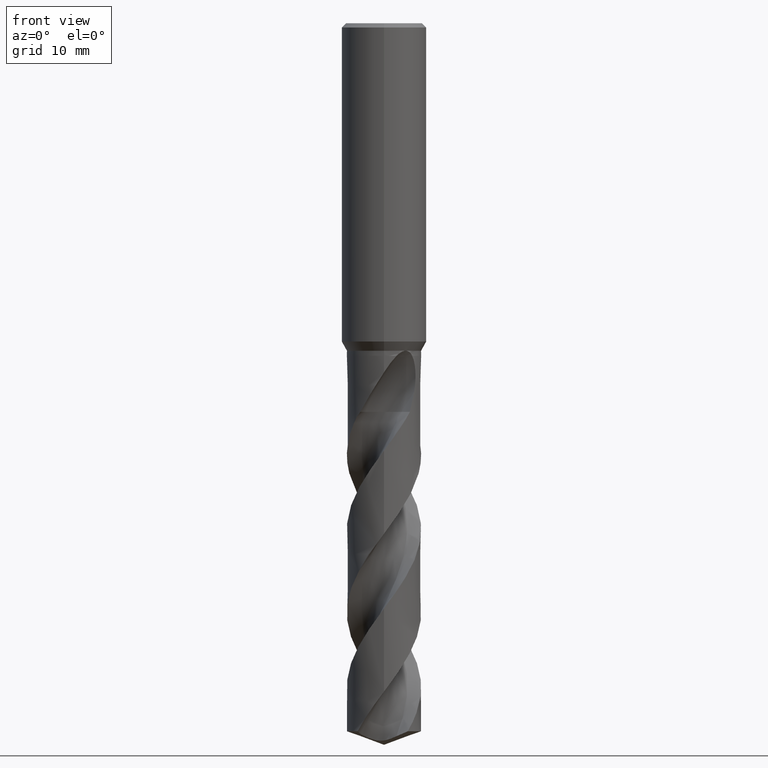
[diagram: clean part render]
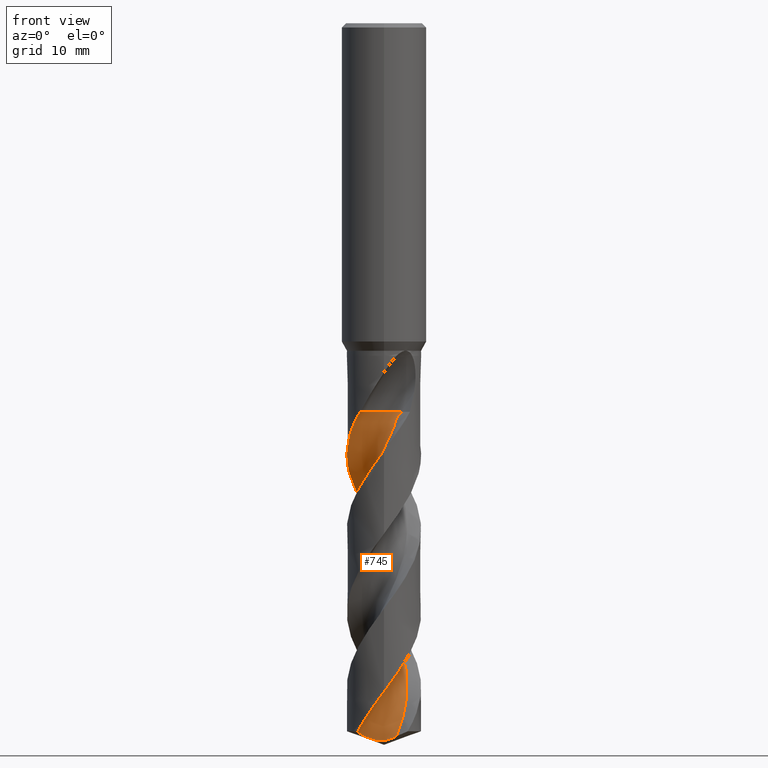
[diagram: same view with one face highlighted and labeled with its STEP entity id]
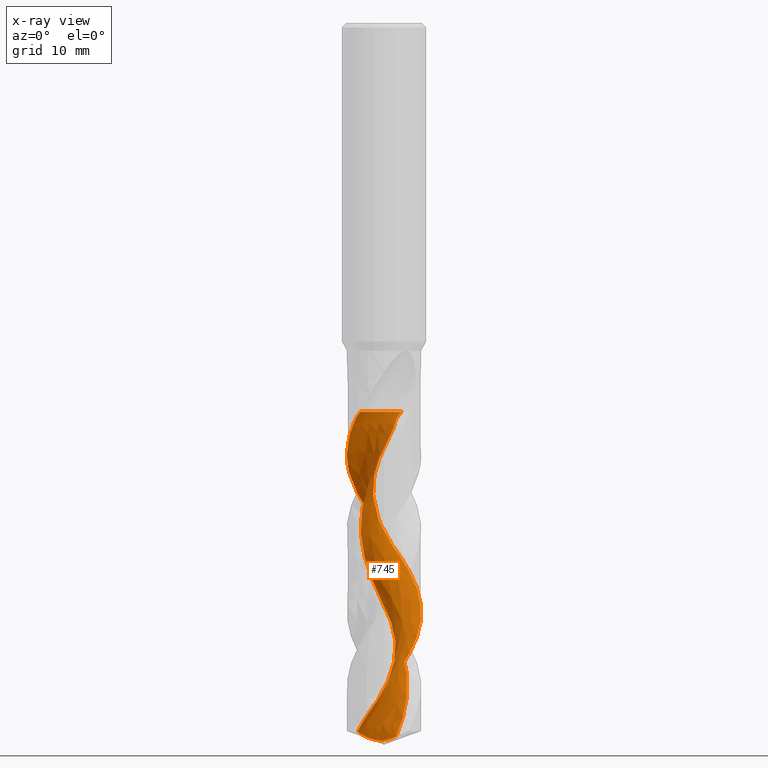
[diagram: x-ray of the same camera — body ghosted, the highlighted face saturated]
A machine part, front view. The second image highlights one B-rep face of the part: STEP entity #745.
The next image is the same camera in x-ray: the body ghosted, the highlighted face saturated — about 0% of this face is hidden behind the body in this view.
In plain terms, the highlighted face is a freeform B-spline surface patch.
Its self-contained STEP definition (entity closure, byte-faithful):
#303=VERTEX_POINT('',#818);
#315=VERTEX_POINT('',#830);
#329=EDGE_CURVE('',#517,#505,#846,.T.);
#401=EDGE_CURVE('',#529,#599,#925,.T.);
#473=EDGE_CURVE('',#667,#303,#1001,.T.);
#497=EDGE_CURVE('',#599,#517,#1027,.T.);
#501=VERTEX_POINT('',#1031);
#505=VERTEX_POINT('',#1036);
#507=EDGE_CURVE('',#501,#315,#1038,.T.);
#517=VERTEX_POINT('',#1050);
#529=VERTEX_POINT('',#1063);
#597=EDGE_CURVE('',#505,#667,#1140,.T.);
#599=VERTEX_POINT('',#1142);
#603=EDGE_CURVE('',#315,#529,#1146,.T.);
#617=EDGE_CURVE('',#303,#501,#1161,.T.);
#667=VERTEX_POINT('',#1216);
#745=ADVANCED_FACE('',(#1302),#1303,.F.);
#818=CARTESIAN_POINT('',(0.416085661035493,-1.59980400787186,-54.943));
#830=CARTESIAN_POINT('',(1.75073859112972,-2.81177966799354,-100.794429127511));
#846=B_SPLINE_CURVE_WITH_KNOTS('',3,(#1550,#1551,#1552,#1553,#1554,#1555,#1556,#1557,#1558,#1559,#1560,#1561,#1562,#1563,#1564,#1565,#1566,#1567,#1568,#1569,#1570,#1571,#1572,#1573,#1574,#1575,#1576,#1577,#1578,#1579,#1580,#1581,#1582,#1583,#1584,#1585,#1586,#1587,#1588,#1589,#1590,#1591,#1592,#1593,#1594,#1595,#1596,#1597,#1598,#1599,#1600,#1601,#1602,#1603,#1604,#1605,#1606,#1607,#1608,#1609,#1610,#1611,#1612,#1613,#1614,#1615,#1616,#1617,#1618,#1619,#1620,#1621,#1622,#1623,#1624,#1625,#1626,#1627,#1628,#1629),.UNSPECIFIED.,.F.,.F.,(4,2,2,2,2,2,2,2,2,2,2,2,2,2,2,2,2,2,2,2,2,2,2,2,2,2,2,2,2,2,2,2,2,2,2,2,2,2,2,4),(0.0,1.55283168259454,4.42357626546534,5.53416940220396,8.49781060848736,8.85510769839194,11.6642792355906,12.8619158530255,15.7445482964796,16.4586824080384,19.3412350320524,19.991186099465,22.882861930393,23.9390301321957,26.8275791020106,27.5429615799312,30.4305916618688,31.0830933109896,33.9787821000602,35.0688289210141,36.6737178038958,38.1260137318522,38.1708728443438,40.6683231910501,43.5585603710858,44.8731053328471,46.3125907684013,46.9140599268263,48.0454198723257,50.0349796865525,52.8407415146857,52.886512737987,53.6082812176403,54.3790207794298,54.5513846646305,54.9634986082932,55.1278093974802,55.3236824134384,55.6892813591893,56.4913873253493),.UNSPECIFIED.);
#925=B_SPLINE_CURVE_WITH_KNOTS('',3,(#2485,#2486,#2487,#2488,#2489,#2490,#2491,#2492,#2493,#2494,#2495,#2496,#2497,#2498,#2499,#2500,#2501,#2502,#2503,#2504),.UNSPECIFIED.,.F.,.F.,(4,2,2,2,2,2,2,2,2,4),(0.0,2.16386525841547,3.65574209703541,5.09061807466391,6.79038332765904,8.76795999185455,11.061840817214,13.6794588463413,15.6721882092207,17.6703370801602),.UNSPECIFIED.);
#1001=CIRCLE('',#2733,3.5);
#1027=B_SPLINE_CURVE_WITH_KNOTS('',3,(#2813,#2814,#2815,#2816,#2817,#2818,#2819,#2820,#2821,#2822,#2823,#2824,#2825,#2826,#2827,#2828,#2829,#2830,#2831,#2832,#2833,#2834,#2835,#2836,#2837,#2838,#2839,#2840,#2841,#2842,#2843,#2844,#2845,#2846,#2847,#2848,#2849,#2850,#2851,#2852,#2853,#2854,#2855,#2856,#2857,#2858,#2859,#2860,#2861,#2862,#2863,#2864,#2865,#2866,#2867,#2868,#2869,#2870,#2871,#2872,#2873,#2874,#2875,#2876,#2877,#2878,#2879,#2880,#2881,#2882,#2883,#2884,#2885,#2886,#2887,#2888,#2889,#2890,#2891,#2892),.UNSPECIFIED.,.F.,.F.,(4,2,2,2,2,2,2,2,2,2,2,2,2,2,2,2,2,2,2,2,2,2,2,2,2,2,2,2,2,2,2,2,2,2,2,2,2,2,2,4),(0.0,1.55283168259454,4.42357626546534,5.53416940220396,8.49781060848736,8.85510769839194,11.6642792355906,12.8619158530255,15.7445482964796,16.4586824080384,19.3412350320524,19.991186099465,22.882861930393,23.9390301321957,26.8275791020106,27.5429615799312,30.4305916618688,31.0830933109896,33.9787821000602,35.0688289210141,36.6737178038958,38.1260137318522,38.1708728443438,40.6683231910501,43.5585603710858,44.8731053328471,46.3125907684013,46.9140599268263,48.0454198723257,50.0349796865525,52.8407415146857,52.886512737987,53.6082812176403,54.3790207794298,54.5513846646305,54.9634986082932,55.1278093974802,55.3236824134384,55.6892813591893,56.4913873253493),.UNSPECIFIED.);
#1031=CARTESIAN_POINT('',(2.47487373408221,-2.6001262659178,-54.943));
#1036=CARTESIAN_POINT('',(-3.27398922719304E-014,5.24994741629352,-72.1729101675563));
#1038=B_SPLINE_CURVE_WITH_KNOTS('',3,(#2907,#2908,#2909,#2910,#2911,#2912,#2913,#2914,#2915,#2916,#2917,#2918,#2919,#2920,#2921,#2922,#2923,#2924,#2925,#2926,#2927,#2928,#2929,#2930,#2931,#2932,#2933,#2934,#2935,#2936,#2937,#2938,#2939,#2940,#2941,#2942,#2943,#2944,#2945,#2946,#2947,#2948,#2949,#2950,#2951,#2952,#2953,#2954,#2955,#2956,#2957,#2958,#2959,#2960,#2961,#2962),.UNSPECIFIED.,.F.,.F.,(4,1,2,1,2,2,2,2,2,1,2,1,2,1,2,1,2,1,2,1,2,1,2,1,2,1,2,1,2,1,2,1,2,2,4),(0.0,1.05734677234702,2.11469354469404,3.17204031704105,4.22938708938807,6.34408063408211,8.45877417877614,10.5734677234702,12.6881612681642,14.8028548128583,16.9175483575523,19.0322419022463,21.1469354469404,23.2616289916344,25.3763225363284,27.4910160810225,29.6057096257165,31.7204031704105,33.8350967151046,35.9497902597986,38.0644838044927,40.1791773491867,42.2938708938807,44.4085644385748,46.5232579832688,48.6379515279628,50.7526450726569,52.8673386173509,54.9820321620449,57.096725706739,59.211419251433,61.326112796127,63.4408063408211,65.5554998855151,67.6701934302092),.UNSPECIFIED.);
#1050=CARTESIAN_POINT('',(-1.81467106613997E-012,-5.24998945088408,-94.4887196337318));
#1063=CARTESIAN_POINT('',(1.69942718185933E-010,-1.67646431718725,-101.389816889734));
#1140=B_SPLINE_CURVE_WITH_KNOTS('',3,(#3250,#3251,#3252,#3253,#3254,#3255,#3256,#3257,#3258,#3259,#3260,#3261,#3262,#3263,#3264,#3265,#3266,#3267,#3268,#3269,#3270,#3271,#3272,#3273,#3274,#3275,#3276,#3277,#3278,#3279,#3280,#3281,#3282,#3283,#3284,#3285,#3286,#3287,#3288,#3289,#3290,#3291,#3292,#3293,#3294,#3295,#3296,#3297,#3298,#3299,#3300,#3301,#3302,#3303,#3304,#3305,#3306,#3307,#3308,#3309,#3310,#3311,#3312,#3313,#3314,#3315,#3316,#3317,#3318,#3319,#3320,#3321,#3322,#3323,#3324,#3325,#3326,#3327,#3328,#3329),.UNSPECIFIED.,.F.,.F.,(4,2,2,2,2,2,2,2,2,2,2,2,2,2,2,2,2,2,2,2,2,2,2,2,2,2,2,2,2,2,2,2,2,2,2,2,2,2,2,4),(0.0,1.55283168259454,4.42357626546534,5.53416940220396,8.49781060848736,8.85510769839194,11.6642792355906,12.8619158530255,15.7445482964796,16.4586824080384,19.3412350320524,19.991186099465,22.882861930393,23.9390301321957,26.8275791020106,27.5429615799312,30.4305916618688,31.0830933109896,33.9787821000602,35.0688289210141,36.6737178038958,38.1260137318522,38.1708728443438,40.6683231910501,43.5585603710858,44.8731053328471,46.3125907684013,46.9140599268263,48.0454198723257,50.0349796865525,52.8407415146857,52.886512737987,53.6082812176403,54.3790207794298,54.5513846646305,54.9634986082932,55.1278093974802,55.3236824134384,55.6892813591893,56.4913873253493),.UNSPECIFIED.);
#1142=CARTESIAN_POINT('',(-3.72328096844918,-3.70130771889938,-100.089156270102));
#1146=B_SPLINE_CURVE_WITH_KNOTS('',3,(#3338,#3339,#3340,#3341,#3342,#3343,#3344,#3345,#3346,#3347,#3348,#3349,#3350,#3351,#3352,#3353,#3354,#3355,#3356,#3357),.UNSPECIFIED.,.F.,.F.,(4,2,2,2,2,2,2,2,2,4),(0.0,2.16386525841547,3.65574209703541,5.09061807466391,6.79038332765904,8.76795999185455,11.061840817214,13.6794588463413,15.6721882092207,17.6703370801602),.UNSPECIFIED.);
#1161=CIRCLE('',#3375,3.5);
#1216=CARTESIAN_POINT('',(-3.34534853535633,-4.04601659429047,-54.943));
#1302=FACE_OUTER_BOUND('',#3981,.T.);
#1303=B_SPLINE_SURFACE_WITH_KNOTS('',3,3,((#3982,#3983,#3984,#3985,#3986,#3987,#3988,#3989,#3990,#3991,#3992,#3993,#3994,#3995,#3996,#3997,#3998,#3999,#4000,#4001,#4002,#4003,#4004,#4005,#4006,#4007,#4008,#4009,#4010,#4011,#4012,#4013,#4014,#4015,#4016,#4017,#4018,#4019,#4020,#4021,#4022,#4023,#4024,#4025,#4026,#4027,#4028,#4029,#4030,#4031,#4032,#4033,#4034,#4035,#4036,#4037),(#4038,#4039,#4040,#4041,#4042,#4043,#4044,#4045,#4046,#4047,#4048,#4049,#4050,#4051,#4052,#4053,#4054,#4055,#4056,#4057,#4058,#4059,#4060,#4061,#4062,#4063,#4064,#4065,#4066,#4067,#4068,#4069,#4070,#4071,#4072,#4073,#4074,#4075,#4076,#4077,#4078,#4079,#4080,#4081,#4082,#4083,#4084,#4085,#4086,#4087,#4088,#4089,#4090,#4091,#4092,#4093),(#4094,#4095,#4096,#4097,#4098,#4099,#4100,#4101,#4102,#4103,#4104,#4105,#4106,#4107,#4108,#4109,#4110,#4111,#4112,#4113,#4114,#4115,#4116,#4117,#4118,#4119,#4120,#4121,#4122,#4123,#4124,#4125,#4126,#4127,#4128,#4129,#4130,#4131,#4132,#4133,#4134,#4135,#4136,#4137,#4138,#4139,#4140,#4141,#4142,#4143,#4144,#4145,#4146,#4147,#4148,#4149),(#4150,#4151,#4152,#4153,#4154,#4155,#4156,#4157,#4158,#4159,#4160,#4161,#4162,#4163,#4164,#4165,#4166,#4167,#4168,#4169,#4170,#4171,#4172,#4173,#4174,#4175,#4176,#4177,#4178,#4179,#4180,#4181,#4182,#4183,#4184,#4185,#4186,#4187,#4188,#4189,#4190,#4191,#4192,#4193,#4194,#4195,#4196,#4197,#4198,#4199,#4200,#4201,#4202,#4203,#4204,#4205),(#4206,#4207,#4208,#4209,#4210,#4211,#4212,#4213,#4214,#4215,#4216,#4217,#4218,#4219,#4220,#4221,#4222,#4223,#4224,#4225,#4226,#4227,#4228,#4229,#4230,#4231,#4232,#4233,#4234,#4235,#4236,#4237,#4238,#4239,#4240,#4241,#4242,#4243,#4244,#4245,#4246,#4247,#4248,#4249,#4250,#4251,#4252,#4253,#4254,#4255,#4256,#4257,#4258,#4259,#4260,#4261),(#4262,#4263,#4264,#4265,#4266,#4267,#4268,#4269,#4270,#4271,#4272,#4273,#4274,#4275,#4276,#4277,#4278,#4279,#4280,#4281,#4282,#4283,#4284,#4285,#4286,#4287,#4288,#4289,#4290,#4291,#4292,#4293,#4294,#4295,#4296,#4297,#4298,#4299,#4300,#4301,#4302,#4303,#4304,#4305,#4306,#4307,#4308,#4309,#4310,#4311,#4312,#4313,#4314,#4315,#4316,#4317),(#4318,#4319,#4320,#4321,#4322,#4323,#4324,#4325,#4326,#4327,#4328,#4329,#4330,#4331,#4332,#4333,#4334,#4335,#4336,#4337,#4338,#4339,#4340,#4341,#4342,#4343,#4344,#4345,#4346,#4347,#4348,#4349,#4350,#4351,#4352,#4353,#4354,#4355,#4356,#4357,#4358,#4359,#4360,#4361,#4362,#4363,#4364,#4365,#4366,#4367,#4368,#4369,#4370,#4371,#4372,#4373),(#4374,#4375,#4376,#4377,#4378,#4379,#4380,#4381,#4382,#4383,#4384,#4385,#4386,#4387,#4388,#4389,#4390,#4391,#4392,#4393,#4394,#4395,#4396,#4397,#4398,#4399,#4400,#4401,#4402,#4403,#4404,#4405,#4406,#4407,#4408,#4409,#4410,#4411,#4412,#4413,#4414,#4415,#4416,#4417,#4418,#4419,#4420,#4421,#4422,#4423,#4424,#4425,#4426,#4427,#4428,#4429),(#4430,#4431,#4432,#4433,#4434,#4435,#4436,#4437,#4438,#4439,#4440,#4441,#4442,#4443,#4444,#4445,#4446,#4447,#4448,#4449,#4450,#4451,#4452,#4453,#4454,#4455,#4456,#4457,#4458,#4459,#4460,#4461,#4462,#4463,#4464,#4465,#4466,#4467,#4468,#4469,#4470,#4471,#4472,#4473,#4474,#4475,#4476,#4477,#4478,#4479,#4480,#4481,#4482,#4483,#4484,#4485),(#4486,#4487,#4488,#4489,#4490,#4491,#4492,#4493,#4494,#4495,#4496,#4497,#4498,#4499,#4500,#4501,#4502,#4503,#4504,#4505,#4506,#4507,#4508,#4509,#4510,#4511,#4512,#4513,#4514,#4515,#4516,#4517,#4518,#4519,#4520,#4521,#4522,#4523,#4524,#4525,#4526,#4527,#4528,#4529,#4530,#4531,#4532,#4533,#4534,#4535,#4536,#4537,#4538,#4539,#4540,#4541),(#4542,#4543,#4544,#4545,#4546,#4547,#4548,#4549,#4550,#4551,#4552,#4553,#4554,#4555,#4556,#4557,#4558,#4559,#4560,#4561,#4562,#4563,#4564,#4565,#4566,#4567,#4568,#4569,#4570,#4571,#4572,#4573,#4574,#4575,#4576,#4577,#4578,#4579,#4580,#4581,#4582,#4583,#4584,#4585,#4586,#4587,#4588,#4589,#4590,#4591,#4592,#4593,#4594,#4595,#4596,#4597)),.UNSPECIFIED.,.F.,.F.,.F.,(4,1,1,1,1,1,1,1,4),(4,1,2,1,2,2,2,2,2,1,2,1,2,1,2,1,2,1,2,1,2,1,2,1,2,1,2,1,2,1,2,1,2,2,4),(-2.39901857237366E-016,0.392700971525963,0.785401943051926,1.17810291457789,1.57080388610385,1.96350485762981,2.35620582915578,2.74890680068174,3.1416077722077),(0.0,1.05734677234702,2.11469354469404,3.17204031704105,4.22938708938807,6.34408063408211,8.45877417877614,10.5734677234702,12.6881612681642,14.8028548128583,16.9175483575523,19.0322419022463,21.1469354469404,23.2616289916344,25.3763225363284,27.4910160810225,29.6057096257165,31.7204031704105,33.8350967151046,35.9497902597986,38.0644838044927,40.1791773491867,42.2938708938807,44.4085644385748,46.5232579832688,48.6379515279628,50.7526450726569,52.8673386173509,54.9820321620449,57.096725706739,59.211419251433,61.326112796127,63.4408063408211,65.5554998855151,67.6701934302092),.UNSPECIFIED.);
#1550=CARTESIAN_POINT('',(-3.72328096844918,-3.70130771889938,-100.089156270102));
#1551=CARTESIAN_POINT('',(-3.50694865496079,-3.91892320093883,-99.6723055476173));
#1552=CARTESIAN_POINT('',(-3.27178257353401,-4.11730368252162,-99.256184491373));
#1553=CARTESIAN_POINT('',(-2.55641534509363,-4.62053922808692,-98.0709418343404));
#1554=CARTESIAN_POINT('',(-2.0426155766559,-4.86948750253922,-97.3171247419112));
#1555=CARTESIAN_POINT('',(-1.28870077251985,-5.09409736464993,-96.2512465839984));
#1556=CARTESIAN_POINT('',(-1.07517604137454,-5.14338606724219,-95.9523312458842));
#1557=CARTESIAN_POINT('',(-0.282229108789621,-5.27490201520784,-94.8616613478142));
#1558=CARTESIAN_POINT('',(0.305773385624763,-5.27346713943181,-94.0849890582356));
#1559=CARTESIAN_POINT('',(0.950440490764781,-5.16371733049515,-93.1960703477832));
#1560=CARTESIAN_POINT('',(1.01947123250923,-5.15053435610854,-93.1003440062924));
#1561=CARTESIAN_POINT('',(1.63030193280169,-5.02108665059044,-92.2518397041837));
#1562=CARTESIAN_POINT('',(2.15090816512759,-4.82119225190339,-91.5132296375117));
#1563=CARTESIAN_POINT('',(2.83586828668687,-4.42449277674893,-90.4420234694063));
#1564=CARTESIAN_POINT('',(3.03193188812343,-4.29248339496923,-90.1201599803857));
#1565=CARTESIAN_POINT('',(3.6673108822494,-3.79946407430955,-89.0295394815214));
#1566=CARTESIAN_POINT('',(4.05621501121183,-3.38100363107341,-88.2742910399438));
#1567=CARTESIAN_POINT('',(4.44837576447634,-2.79176473526083,-87.3131000887591));
#1568=CARTESIAN_POINT('',(4.52144940454883,-2.67180884827898,-87.1217149740394));
#1569=CARTESIAN_POINT('',(4.86570233079006,-2.05186463393643,-86.1595403663949));
#1570=CARTESIAN_POINT('',(5.05894411817027,-1.5138717563897,-85.4036866177896));
#1571=CARTESIAN_POINT('',(5.18560010166432,-0.829541504352276,-84.4594009858077));
#1572=CARTESIAN_POINT('',(5.2042471455195,-0.703091391750399,-84.285202732164));
#1573=CARTESIAN_POINT('',(5.28066836782607,-0.0107866994223819,-83.3390047063921));
#1574=CARTESIAN_POINT('',(5.25085933262517,0.560858050900876,-82.5818266793023));
#1575=CARTESIAN_POINT('',(5.08553759192692,1.32009617858223,-81.528967988177));
#1576=CARTESIAN_POINT('',(5.02938521960734,1.52005535718833,-81.2460139680815));
#1577=CARTESIAN_POINT('',(4.77571628381148,2.2533189078108,-80.1939809263232));
#1578=CARTESIAN_POINT('',(4.50428953273375,2.75592559442476,-79.4388270795257));
#1579=CARTESIAN_POINT('',(4.0722898740351,3.31636202392358,-78.4777413870751));
#1580=CARTESIAN_POINT('',(3.98217895650476,3.4240533121824,-78.2864249983892));
#1581=CARTESIAN_POINT('',(3.50562968213206,3.94912227006151,-77.324362890783));
#1582=CARTESIAN_POINT('',(3.05822178154104,4.30484869706049,-76.5685959549248));
#1583=CARTESIAN_POINT('',(2.45067177352102,4.64464057928539,-75.6239666697643));
#1584=CARTESIAN_POINT('',(2.33666903546506,4.70302117273316,-75.4494009412483));
#1585=CARTESIAN_POINT('',(1.70530639519933,4.99772531318835,-74.5029780302499));
#1586=CARTESIAN_POINT('',(1.15444092001456,5.15296175840761,-73.7459806837534));
#1587=CARTESIAN_POINT('',(0.376182116282807,5.24083246672806,-72.6846371602285));
#1588=CARTESIAN_POINT('',(0.16240374556267,5.25180416333655,-72.3930346769591));
#1589=CARTESIAN_POINT('',(-0.367070912451738,5.2465825898381,-71.6753137295766));
#1590=CARTESIAN_POINT('',(-0.681917763852814,5.21507214462555,-71.2506991661853));
#1591=CARTESIAN_POINT('',(-1.27361919216938,5.10115130061989,-70.4381502414181));
#1592=CARTESIAN_POINT('',(-1.54892890565863,5.02430601438695,-70.0536204489383));
#1593=CARTESIAN_POINT('',(-1.82408972058166,4.92287232860812,-69.6543303380844));
#1594=CARTESIAN_POINT('',(-1.83231604596431,4.91981638029251,-69.6423784711305));
#1595=CARTESIAN_POINT('',(-2.29951539772919,4.74492066757987,-68.9631845235388));
#1596=CARTESIAN_POINT('',(-2.73311634460861,4.50937820157399,-68.3059676674335));
#1597=CARTESIAN_POINT('',(-3.58628710479701,3.87623855424795,-66.8721304790389));
#1598=CARTESIAN_POINT('',(-3.98550600377261,3.46449810328575,-66.0992698043365));
#1599=CARTESIAN_POINT('',(-4.4589756094267,2.78327316278227,-64.980685062898));
#1600=CARTESIAN_POINT('',(-4.59089576615485,2.55979008312377,-64.632312722918));
#1601=CARTESIAN_POINT('',(-4.83142267766327,2.07353343113436,-63.8990681206454));
#1602=CARTESIAN_POINT('',(-4.93619710476307,1.80994538010295,-63.5141079993371));
#1603=CARTESIAN_POINT('',(-5.05389729760698,1.42614311767012,-62.9705987422274));
#1604=CARTESIAN_POINT('',(-5.08475773682793,1.31187265595017,-62.8105837859164));
#1605=CARTESIAN_POINT('',(-5.16247879470687,0.979862205820012,-62.3492451661076));
#1606=CARTESIAN_POINT('',(-5.19939623396603,0.760031566846202,-62.0478796684582));
#1607=CARTESIAN_POINT('',(-5.26241880420548,0.14877883124267,-61.217145352013));
#1608=CARTESIAN_POINT('',(-5.25883820525313,-0.244026838317106,-60.6899035343629));
#1609=CARTESIAN_POINT('',(-5.14515906384193,-1.18056365996501,-59.4139539865779));
#1610=CARTESIAN_POINT('',(-4.9921009055749,-1.72071690977568,-58.6487101854425));
#1611=CARTESIAN_POINT('',(-4.74747933126276,-2.24124757394487,-57.8935921188496));
#1612=CARTESIAN_POINT('',(-4.74363142000007,-2.24937982414721,-57.8817936094091));
#1613=CARTESIAN_POINT('',(-4.67776984594474,-2.38765004810517,-57.6807333844253));
#1614=CARTESIAN_POINT('',(-4.6113130411068,-2.51338016955247,-57.4916700653642));
#1615=CARTESIAN_POINT('',(-4.46592074149185,-2.76398011566601,-57.0950579818951));
#1616=CARTESIAN_POINT('',(-4.38721315161969,-2.88689097364073,-56.8891933021354));
#1617=CARTESIAN_POINT('',(-4.28788983856758,-3.02929829254719,-56.6319290217737));
#1618=CARTESIAN_POINT('',(-4.26964361462898,-3.05495643997895,-56.5847673446125));
#1619=CARTESIAN_POINT('',(-4.2074918189835,-3.14073681062753,-56.4242127874676));
#1620=CARTESIAN_POINT('',(-4.17372758811211,-3.18577676283055,-56.3345711893508));
#1621=CARTESIAN_POINT('',(-4.09844503953779,-3.28109404992842,-56.1599432336264));
#1622=CARTESIAN_POINT('',(-4.07635828068138,-3.30850681857003,-56.1106270695393));
#1623=CARTESIAN_POINT('',(-4.02644238347697,-3.3691563447211,-56.0034118655196));
#1624=CARTESIAN_POINT('',(-3.99837476637681,-3.40244013522676,-55.9457904985956));
#1625=CARTESIAN_POINT('',(-3.91504702844078,-3.49870020309846,-55.7823530109607));
#1626=CARTESIAN_POINT('',(-3.85753638322087,-3.562144620324,-55.6785050712212));
#1627=CARTESIAN_POINT('',(-3.66220505486614,-3.76664367873765,-55.3535510930191));
#1628=CARTESIAN_POINT('',(-3.5125293838664,-3.90778774458861,-55.1439330079438));
#1629=CARTESIAN_POINT('',(-3.34534853535632,-4.04601659429047,-54.943));
#2485=CARTESIAN_POINT('',(1.7507385911294,-2.81177966799361,-100.794429127511));
#2486=CARTESIAN_POINT('',(1.24802443741728,-2.35281952140253,-101.032947570326));
#2487=CARTESIAN_POINT('',(0.693530301324114,-2.00169318523806,-101.246959156121));
#2488=CARTESIAN_POINT('',(-0.126657165334552,-1.61066310917238,-101.423154917226));
#2489=CARTESIAN_POINT('',(-0.426045575562784,-1.50608299011411,-101.44005496121));
#2490=CARTESIAN_POINT('',(-0.999997062889071,-1.39104785580282,-101.384662464467));
#2491=CARTESIAN_POINT('',(-1.26577272208454,-1.38210258055615,-101.319983563756));
#2492=CARTESIAN_POINT('',(-1.81245908915666,-1.45159301895095,-101.157219554314));
#2493=CARTESIAN_POINT('',(-2.09371488520224,-1.54682979044144,-101.052613584394));
#2494=CARTESIAN_POINT('',(-2.64981438087773,-1.85766183180533,-100.822236456509));
#2495=CARTESIAN_POINT('',(-2.90986071774804,-2.08655037459254,-100.697146881911));
#2496=CARTESIAN_POINT('',(-3.36973709215771,-2.67175306046079,-100.435224927436));
#2497=CARTESIAN_POINT('',(-3.54869692641376,-3.03673072009732,-100.301733165692));
#2498=CARTESIAN_POINT('',(-3.78324819637283,-3.87105330698904,-100.031837557691));
#2499=CARTESIAN_POINT('',(-3.8163521895618,-4.34145757007729,-99.8995113146703));
#2500=CARTESIAN_POINT('',(-3.72507195366693,-5.16304450006919,-99.6845457790431));
#2501=CARTESIAN_POINT('',(-3.63671605345572,-5.51343498767667,-99.5982955889355));
#2502=CARTESIAN_POINT('',(-3.37164492272182,-6.18528240485082,-99.4381176514166));
#2503=CARTESIAN_POINT('',(-3.19528162009654,-6.50519758248786,-99.3645826903774));
#2504=CARTESIAN_POINT('',(-2.980987061534,-6.79990559779817,-99.2976588816033));
#2733=AXIS2_PLACEMENT_3D('',#5534,#5535,#5536);
#2813=CARTESIAN_POINT('',(-3.72328096844918,-3.70130771889938,-100.089156270102));
#2814=CARTESIAN_POINT('',(-3.50694865496079,-3.91892320093883,-99.6723055476173));
#2815=CARTESIAN_POINT('',(-3.27178257353401,-4.11730368252162,-99.256184491373));
#2816=CARTESIAN_POINT('',(-2.55641534509363,-4.62053922808692,-98.0709418343404));
#2817=CARTESIAN_POINT('',(-2.0426155766559,-4.86948750253922,-97.3171247419112));
#2818=CARTESIAN_POINT('',(-1.28870077251985,-5.09409736464993,-96.2512465839984));
#2819=CARTESIAN_POINT('',(-1.07517604137454,-5.14338606724219,-95.9523312458842));
#2820=CARTESIAN_POINT('',(-0.282229108789621,-5.27490201520784,-94.8616613478142));
#2821=CARTESIAN_POINT('',(0.305773385624763,-5.27346713943181,-94.0849890582356));
#2822=CARTESIAN_POINT('',(0.950440490764781,-5.16371733049515,-93.1960703477832));
#2823=CARTESIAN_POINT('',(1.01947123250923,-5.15053435610854,-93.1003440062924));
#2824=CARTESIAN_POINT('',(1.63030193280169,-5.02108665059044,-92.2518397041837));
#2825=CARTESIAN_POINT('',(2.15090816512759,-4.82119225190339,-91.5132296375117));
#2826=CARTESIAN_POINT('',(2.83586828668687,-4.42449277674893,-90.4420234694063));
#2827=CARTESIAN_POINT('',(3.03193188812343,-4.29248339496923,-90.1201599803857));
#2828=CARTESIAN_POINT('',(3.6673108822494,-3.79946407430955,-89.0295394815214));
#2829=CARTESIAN_POINT('',(4.05621501121183,-3.38100363107341,-88.2742910399438));
#2830=CARTESIAN_POINT('',(4.44837576447634,-2.79176473526083,-87.3131000887591));
#2831=CARTESIAN_POINT('',(4.52144940454883,-2.67180884827898,-87.1217149740394));
#2832=CARTESIAN_POINT('',(4.86570233079006,-2.05186463393643,-86.1595403663949));
#2833=CARTESIAN_POINT('',(5.05894411817027,-1.5138717563897,-85.4036866177896));
#2834=CARTESIAN_POINT('',(5.18560010166432,-0.829541504352276,-84.4594009858077));
#2835=CARTESIAN_POINT('',(5.2042471455195,-0.703091391750399,-84.285202732164));
#2836=CARTESIAN_POINT('',(5.28066836782607,-0.0107866994223819,-83.3390047063921));
#2837=CARTESIAN_POINT('',(5.25085933262517,0.560858050900876,-82.5818266793023));
#2838=CARTESIAN_POINT('',(5.08553759192692,1.32009617858223,-81.528967988177));
#2839=CARTESIAN_POINT('',(5.02938521960734,1.52005535718833,-81.2460139680815));
#2840=CARTESIAN_POINT('',(4.77571628381148,2.2533189078108,-80.1939809263232));
#2841=CARTESIAN_POINT('',(4.50428953273375,2.75592559442476,-79.4388270795257));
#2842=CARTESIAN_POINT('',(4.0722898740351,3.31636202392358,-78.4777413870751));
#2843=CARTESIAN_POINT('',(3.98217895650476,3.4240533121824,-78.2864249983892));
#2844=CARTESIAN_POINT('',(3.50562968213206,3.94912227006151,-77.324362890783));
#2845=CARTESIAN_POINT('',(3.05822178154104,4.30484869706049,-76.5685959549248));
#2846=CARTESIAN_POINT('',(2.45067177352102,4.64464057928539,-75.6239666697643));
#2847=CARTESIAN_POINT('',(2.33666903546506,4.70302117273316,-75.4494009412483));
#2848=CARTESIAN_POINT('',(1.70530639519933,4.99772531318835,-74.5029780302499));
#2849=CARTESIAN_POINT('',(1.15444092001456,5.15296175840761,-73.7459806837534));
#2850=CARTESIAN_POINT('',(0.376182116282807,5.24083246672806,-72.6846371602285));
#2851=CARTESIAN_POINT('',(0.16240374556267,5.25180416333655,-72.3930346769591));
#2852=CARTESIAN_POINT('',(-0.367070912451738,5.2465825898381,-71.6753137295766));
#2853=CARTESIAN_POINT('',(-0.681917763852814,5.21507214462555,-71.2506991661853));
#2854=CARTESIAN_POINT('',(-1.27361919216938,5.10115130061989,-70.4381502414181));
#2855=CARTESIAN_POINT('',(-1.54892890565863,5.02430601438695,-70.0536204489383));
#2856=CARTESIAN_POINT('',(-1.82408972058166,4.92287232860812,-69.6543303380844));
#2857=CARTESIAN_POINT('',(-1.83231604596431,4.91981638029251,-69.6423784711305));
#2858=CARTESIAN_POINT('',(-2.29951539772919,4.74492066757987,-68.9631845235388));
#2859=CARTESIAN_POINT('',(-2.73311634460861,4.50937820157399,-68.3059676674335));
#2860=CARTESIAN_POINT('',(-3.58628710479701,3.87623855424795,-66.8721304790389));
#2861=CARTESIAN_POINT('',(-3.98550600377261,3.46449810328575,-66.0992698043365));
#2862=CARTESIAN_POINT('',(-4.4589756094267,2.78327316278227,-64.980685062898));
#2863=CARTESIAN_POINT('',(-4.59089576615485,2.55979008312377,-64.632312722918));
#2864=CARTESIAN_POINT('',(-4.83142267766327,2.07353343113436,-63.8990681206454));
#2865=CARTESIAN_POINT('',(-4.93619710476307,1.80994538010295,-63.5141079993371));
#2866=CARTESIAN_POINT('',(-5.05389729760698,1.42614311767012,-62.9705987422274));
#2867=CARTESIAN_POINT('',(-5.08475773682793,1.31187265595017,-62.8105837859164));
#2868=CARTESIAN_POINT('',(-5.16247879470687,0.979862205820012,-62.3492451661076));
#2869=CARTESIAN_POINT('',(-5.19939623396603,0.760031566846202,-62.0478796684582));
#2870=CARTESIAN_POINT('',(-5.26241880420548,0.14877883124267,-61.217145352013));
#2871=CARTESIAN_POINT('',(-5.25883820525313,-0.244026838317106,-60.6899035343629));
#2872=CARTESIAN_POINT('',(-5.14515906384193,-1.18056365996501,-59.4139539865779));
#2873=CARTESIAN_POINT('',(-4.9921009055749,-1.72071690977568,-58.6487101854425));
#2874=CARTESIAN_POINT('',(-4.74747933126276,-2.24124757394487,-57.8935921188496));
#2875=CARTESIAN_POINT('',(-4.74363142000007,-2.24937982414721,-57.8817936094091));
#2876=CARTESIAN_POINT('',(-4.67776984594474,-2.38765004810517,-57.6807333844253));
#2877=CARTESIAN_POINT('',(-4.6113130411068,-2.51338016955247,-57.4916700653642));
#2878=CARTESIAN_POINT('',(-4.46592074149185,-2.76398011566601,-57.0950579818951));
#2879=CARTESIAN_POINT('',(-4.38721315161969,-2.88689097364073,-56.8891933021354));
#2880=CARTESIAN_POINT('',(-4.28788983856758,-3.02929829254719,-56.6319290217737));
#2881=CARTESIAN_POINT('',(-4.26964361462898,-3.05495643997895,-56.5847673446125));
#2882=CARTESIAN_POINT('',(-4.2074918189835,-3.14073681062753,-56.4242127874676));
#2883=CARTESIAN_POINT('',(-4.17372758811211,-3.18577676283055,-56.3345711893508));
#2884=CARTESIAN_POINT('',(-4.09844503953779,-3.28109404992842,-56.1599432336264));
#2885=CARTESIAN_POINT('',(-4.07635828068138,-3.30850681857003,-56.1106270695393));
#2886=CARTESIAN_POINT('',(-4.02644238347697,-3.3691563447211,-56.0034118655196));
#2887=CARTESIAN_POINT('',(-3.99837476637681,-3.40244013522676,-55.9457904985956));
#2888=CARTESIAN_POINT('',(-3.91504702844078,-3.49870020309846,-55.7823530109607));
#2889=CARTESIAN_POINT('',(-3.85753638322087,-3.562144620324,-55.6785050712212));
#2890=CARTESIAN_POINT('',(-3.66220505486614,-3.76664367873765,-55.3535510930191));
#2891=CARTESIAN_POINT('',(-3.5125293838664,-3.90778774458861,-55.1439330079438));
#2892=CARTESIAN_POINT('',(-3.34534853535632,-4.04601659429047,-54.943));
#2907=CARTESIAN_POINT('',(2.4748737340822,-2.6001262659178,-54.943));
#2908=CARTESIAN_POINT('',(2.22660323226952,-2.58831108785559,-55.1877816249523));
#2909=CARTESIAN_POINT('',(1.83116971062741,-2.61479657193635,-55.6750969390619));
#2910=CARTESIAN_POINT('',(1.63728256774363,-2.7332740687947,-56.1619796187424));
#2911=CARTESIAN_POINT('',(1.52713077923849,-2.91008421236025,-56.6553591864808));
#2912=CARTESIAN_POINT('',(1.37378108645892,-3.05735487858729,-57.1496779109012));
#2913=CARTESIAN_POINT('',(1.15630695150255,-3.1371213850144,-57.6408730109222));
#2914=CARTESIAN_POINT('',(0.799916247588327,-3.20836027685924,-58.3725665016454));
#2915=CARTESIAN_POINT('',(0.571949873151607,-3.24791369605379,-58.8610470909176));
#2916=CARTESIAN_POINT('',(0.129404134089158,-3.31588236061438,-59.8439732408785));
#2917=CARTESIAN_POINT('',(-0.101237605574655,-3.31584459646413,-60.3349004050003));
#2918=CARTESIAN_POINT('',(-0.556286339284259,-3.26792282430964,-61.3143316111876));
#2919=CARTESIAN_POINT('',(-0.781464994028494,-3.21857453067097,-61.8043660698626));
#2920=CARTESIAN_POINT('',(-1.21626005995777,-3.0834201377964,-62.785332233345));
#2921=CARTESIAN_POINT('',(-1.42659885713527,-2.99020360602437,-63.275572432684));
#2922=CARTESIAN_POINT('',(-1.82471834287933,-2.77339485674471,-64.25591535167));
#2923=CARTESIAN_POINT('',(-2.19779823174418,-2.49996150241443,-65.2367205402932));
#2924=CARTESIAN_POINT('',(-2.50681679060969,-2.15903460192134,-66.2166447770555));
#2925=CARTESIAN_POINT('',(-2.78601133858344,-1.80391473182526,-67.1972496873164));
#2926=CARTESIAN_POINT('',(-3.01896290892028,-1.40525443361599,-68.1783551062178));
#2927=CARTESIAN_POINT('',(-3.16448189715136,-0.96842216650869,-69.1583570206863));
#2928=CARTESIAN_POINT('',(-3.27647542751783,-0.530401354724329,-70.1388175969809));
#2929=CARTESIAN_POINT('',(-3.32895278895641,-0.0715203913777617,-71.1198006136556));
#2930=CARTESIAN_POINT('',(-3.28652341595611,0.386852329391782,-72.0997858964796));
#2931=CARTESIAN_POINT('',(-3.21293845883704,0.83286145637965,-73.0802986442849));
#2932=CARTESIAN_POINT('',(-3.07636565041656,1.27406952842822,-74.0613202517419));
#2933=CARTESIAN_POINT('',(-2.85303158740956,1.67662800214856,-75.041308255077));
#2934=CARTESIAN_POINT('',(-2.60618721279697,2.05532876475196,-76.0218060020238));
#2935=CARTESIAN_POINT('',(-2.30363271526679,2.40428825198601,-77.0028175845263));
#2936=CARTESIAN_POINT('',(-1.93720275694255,2.68295400390727,-77.9828054299729));
#2937=CARTESIAN_POINT('',(-1.55883467494433,2.93030991762153,-78.9633067897233));
#2938=CARTESIAN_POINT('',(-1.14143203908452,3.12802072130539,-79.9443205650301));
#2939=CARTESIAN_POINT('',(-0.693844709603016,3.23568190068956,-80.9243083595286));
#2940=CARTESIAN_POINT('',(-0.247930701547423,3.30988196428721,-81.9048091167445));
#2941=CARTESIAN_POINT('',(0.213744088600144,3.32292249238006,-82.8858218739794));
#2942=CARTESIAN_POINT('',(0.666818177557814,3.24137287238071,-83.8658076658053));
#2943=CARTESIAN_POINT('',(1.1048948845031,3.12986361788871,-84.8463059657517));
#2944=CARTESIAN_POINT('',(1.5327884805707,2.9560290032038,-85.8273206114675));
#2945=CARTESIAN_POINT('',(1.9147475729402,2.69905399020593,-86.8073134774064));
#2946=CARTESIAN_POINT('',(2.27091893277612,2.42067439843646,-87.7878190854517));
#2947=CARTESIAN_POINT('',(2.59268738244812,2.08933568844391,-88.7688244526367));
#2948=CARTESIAN_POINT('',(2.83897147357171,1.70042462651187,-89.7487924472496));
#2949=CARTESIAN_POINT('',(3.05306831466365,1.30233447298213,-90.7292760079366));
#2950=CARTESIAN_POINT('',(3.21432650511653,0.869552936648869,-91.7103178242095));
#2951=CARTESIAN_POINT('',(3.28309459041447,0.414255969890846,-92.6903616870526));
#2952=CARTESIAN_POINT('',(3.3185361797804,-0.0365531402025072,-93.6708969070457));
#2953=CARTESIAN_POINT('',(3.29203172577042,-0.497624571509211,-94.651801394224));
#2954=CARTESIAN_POINT('',(3.17291096411208,-0.941842604460874,-95.6316584520552));
#2955=CARTESIAN_POINT('',(3.0255679833199,-1.36864839612105,-96.6121550485265));
#2956=CARTESIAN_POINT('',(2.81526829124308,-1.78018214337819,-97.5935705785502));
#2957=CARTESIAN_POINT('',(2.52316433066451,-2.1380683176994,-98.5738503969664));
#2958=CARTESIAN_POINT('',(2.21150693956013,-2.46776411052416,-99.5541375799459));
#2959=CARTESIAN_POINT('',(2.03595053960006,-2.61490806564498,-100.043882233457));
#2960=CARTESIAN_POINT('',(1.66691079829135,-2.87519609716982,-101.023189625601));
#2961=CARTESIAN_POINT('',(1.45607646492274,-2.97744864974534,-101.513564845193));
#2962=CARTESIAN_POINT('',(1.23250828115598,-3.05190339471903,-102.003238914648));
#3250=CARTESIAN_POINT('',(-3.72328096844918,-3.70130771889938,-100.089156270102));
#3251=CARTESIAN_POINT('',(-3.50694865496079,-3.91892320093883,-99.6723055476173));
#3252=CARTESIAN_POINT('',(-3.27178257353401,-4.11730368252162,-99.256184491373));
#3253=CARTESIAN_POINT('',(-2.55641534509363,-4.62053922808692,-98.0709418343404));
#3254=CARTESIAN_POINT('',(-2.0426155766559,-4.86948750253922,-97.3171247419112));
#3255=CARTESIAN_POINT('',(-1.28870077251985,-5.09409736464993,-96.2512465839984));
#3256=CARTESIAN_POINT('',(-1.07517604137454,-5.14338606724219,-95.9523312458842));
#3257=CARTESIAN_POINT('',(-0.282229108789621,-5.27490201520784,-94.8616613478142));
#3258=CARTESIAN_POINT('',(0.305773385624763,-5.27346713943181,-94.0849890582356));
#3259=CARTESIAN_POINT('',(0.950440490764781,-5.16371733049515,-93.1960703477832));
#3260=CARTESIAN_POINT('',(1.01947123250923,-5.15053435610854,-93.1003440062924));
#3261=CARTESIAN_POINT('',(1.63030193280169,-5.02108665059044,-92.2518397041837));
#3262=CARTESIAN_POINT('',(2.15090816512759,-4.82119225190339,-91.5132296375117));
#3263=CARTESIAN_POINT('',(2.83586828668687,-4.42449277674893,-90.4420234694063));
#3264=CARTESIAN_POINT('',(3.03193188812343,-4.29248339496923,-90.1201599803857));
#3265=CARTESIAN_POINT('',(3.6673108822494,-3.79946407430955,-89.0295394815214));
#3266=CARTESIAN_POINT('',(4.05621501121183,-3.38100363107341,-88.2742910399438));
#3267=CARTESIAN_POINT('',(4.44837576447634,-2.79176473526083,-87.3131000887591));
#3268=CARTESIAN_POINT('',(4.52144940454883,-2.67180884827898,-87.1217149740394));
#3269=CARTESIAN_POINT('',(4.86570233079006,-2.05186463393643,-86.1595403663949));
#3270=CARTESIAN_POINT('',(5.05894411817027,-1.5138717563897,-85.4036866177896));
#3271=CARTESIAN_POINT('',(5.18560010166432,-0.829541504352276,-84.4594009858077));
#3272=CARTESIAN_POINT('',(5.2042471455195,-0.703091391750399,-84.285202732164));
#3273=CARTESIAN_POINT('',(5.28066836782607,-0.0107866994223819,-83.3390047063921));
#3274=CARTESIAN_POINT('',(5.25085933262517,0.560858050900876,-82.5818266793023));
#3275=CARTESIAN_POINT('',(5.08553759192692,1.32009617858223,-81.528967988177));
#3276=CARTESIAN_POINT('',(5.02938521960734,1.52005535718833,-81.2460139680815));
#3277=CARTESIAN_POINT('',(4.77571628381148,2.2533189078108,-80.1939809263232));
#3278=CARTESIAN_POINT('',(4.50428953273375,2.75592559442476,-79.4388270795257));
#3279=CARTESIAN_POINT('',(4.0722898740351,3.31636202392358,-78.4777413870751));
#3280=CARTESIAN_POINT('',(3.98217895650476,3.4240533121824,-78.2864249983892));
#3281=CARTESIAN_POINT('',(3.50562968213206,3.94912227006151,-77.324362890783));
#3282=CARTESIAN_POINT('',(3.05822178154104,4.30484869706049,-76.5685959549248));
#3283=CARTESIAN_POINT('',(2.45067177352102,4.64464057928539,-75.6239666697643));
#3284=CARTESIAN_POINT('',(2.33666903546506,4.70302117273316,-75.4494009412483));
#3285=CARTESIAN_POINT('',(1.70530639519933,4.99772531318835,-74.5029780302499));
#3286=CARTESIAN_POINT('',(1.15444092001456,5.15296175840761,-73.7459806837534));
#3287=CARTESIAN_POINT('',(0.376182116282807,5.24083246672806,-72.6846371602285));
#3288=CARTESIAN_POINT('',(0.16240374556267,5.25180416333655,-72.3930346769591));
#3289=CARTESIAN_POINT('',(-0.367070912451738,5.2465825898381,-71.6753137295766));
#3290=CARTESIAN_POINT('',(-0.681917763852814,5.21507214462555,-71.2506991661853));
#3291=CARTESIAN_POINT('',(-1.27361919216938,5.10115130061989,-70.4381502414181));
#3292=CARTESIAN_POINT('',(-1.54892890565863,5.02430601438695,-70.0536204489383));
#3293=CARTESIAN_POINT('',(-1.82408972058166,4.92287232860812,-69.6543303380844));
#3294=CARTESIAN_POINT('',(-1.83231604596431,4.91981638029251,-69.6423784711305));
#3295=CARTESIAN_POINT('',(-2.29951539772919,4.74492066757987,-68.9631845235388));
#3296=CARTESIAN_POINT('',(-2.73311634460861,4.50937820157399,-68.3059676674335));
#3297=CARTESIAN_POINT('',(-3.58628710479701,3.87623855424795,-66.8721304790389));
#3298=CARTESIAN_POINT('',(-3.98550600377261,3.46449810328575,-66.0992698043365));
#3299=CARTESIAN_POINT('',(-4.4589756094267,2.78327316278227,-64.980685062898));
#3300=CARTESIAN_POINT('',(-4.59089576615485,2.55979008312377,-64.632312722918));
#3301=CARTESIAN_POINT('',(-4.83142267766327,2.07353343113436,-63.8990681206454));
#3302=CARTESIAN_POINT('',(-4.93619710476307,1.80994538010295,-63.5141079993371));
#3303=CARTESIAN_POINT('',(-5.05389729760698,1.42614311767012,-62.9705987422274));
#3304=CARTESIAN_POINT('',(-5.08475773682793,1.31187265595017,-62.8105837859164));
#3305=CARTESIAN_POINT('',(-5.16247879470687,0.979862205820012,-62.3492451661076));
#3306=CARTESIAN_POINT('',(-5.19939623396603,0.760031566846202,-62.0478796684582));
#3307=CARTESIAN_POINT('',(-5.26241880420548,0.14877883124267,-61.217145352013));
#3308=CARTESIAN_POINT('',(-5.25883820525313,-0.244026838317106,-60.6899035343629));
#3309=CARTESIAN_POINT('',(-5.14515906384193,-1.18056365996501,-59.4139539865779));
#3310=CARTESIAN_POINT('',(-4.9921009055749,-1.72071690977568,-58.6487101854425));
#3311=CARTESIAN_POINT('',(-4.74747933126276,-2.24124757394487,-57.8935921188496));
#3312=CARTESIAN_POINT('',(-4.74363142000007,-2.24937982414721,-57.8817936094091));
#3313=CARTESIAN_POINT('',(-4.67776984594474,-2.38765004810517,-57.6807333844253));
#3314=CARTESIAN_POINT('',(-4.6113130411068,-2.51338016955247,-57.4916700653642));
#3315=CARTESIAN_POINT('',(-4.46592074149185,-2.76398011566601,-57.0950579818951));
#3316=CARTESIAN_POINT('',(-4.38721315161969,-2.88689097364073,-56.8891933021354));
#3317=CARTESIAN_POINT('',(-4.28788983856758,-3.02929829254719,-56.6319290217737));
#3318=CARTESIAN_POINT('',(-4.26964361462898,-3.05495643997895,-56.5847673446125));
#3319=CARTESIAN_POINT('',(-4.2074918189835,-3.14073681062753,-56.4242127874676));
#3320=CARTESIAN_POINT('',(-4.17372758811211,-3.18577676283055,-56.3345711893508));
#3321=CARTESIAN_POINT('',(-4.09844503953779,-3.28109404992842,-56.1599432336264));
#3322=CARTESIAN_POINT('',(-4.07635828068138,-3.30850681857003,-56.1106270695393));
#3323=CARTESIAN_POINT('',(-4.02644238347697,-3.3691563447211,-56.0034118655196));
#3324=CARTESIAN_POINT('',(-3.99837476637681,-3.40244013522676,-55.9457904985956));
#3325=CARTESIAN_POINT('',(-3.91504702844078,-3.49870020309846,-55.7823530109607));
#3326=CARTESIAN_POINT('',(-3.85753638322087,-3.562144620324,-55.6785050712212));
#3327=CARTESIAN_POINT('',(-3.66220505486614,-3.76664367873765,-55.3535510930191));
#3328=CARTESIAN_POINT('',(-3.5125293838664,-3.90778774458861,-55.1439330079438));
#3329=CARTESIAN_POINT('',(-3.34534853535632,-4.04601659429047,-54.943));
#3338=CARTESIAN_POINT('',(1.7507385911294,-2.81177966799361,-100.794429127511));
#3339=CARTESIAN_POINT('',(1.24802443741728,-2.35281952140253,-101.032947570326));
#3340=CARTESIAN_POINT('',(0.693530301324114,-2.00169318523806,-101.246959156121));
#3341=CARTESIAN_POINT('',(-0.126657165334552,-1.61066310917238,-101.423154917226));
#3342=CARTESIAN_POINT('',(-0.426045575562784,-1.50608299011411,-101.44005496121));
#3343=CARTESIAN_POINT('',(-0.999997062889071,-1.39104785580282,-101.384662464467));
#3344=CARTESIAN_POINT('',(-1.26577272208454,-1.38210258055615,-101.319983563756));
#3345=CARTESIAN_POINT('',(-1.81245908915666,-1.45159301895095,-101.157219554314));
#3346=CARTESIAN_POINT('',(-2.09371488520224,-1.54682979044144,-101.052613584394));
#3347=CARTESIAN_POINT('',(-2.64981438087773,-1.85766183180533,-100.822236456509));
#3348=CARTESIAN_POINT('',(-2.90986071774804,-2.08655037459254,-100.697146881911));
#3349=CARTESIAN_POINT('',(-3.36973709215771,-2.67175306046079,-100.435224927436));
#3350=CARTESIAN_POINT('',(-3.54869692641376,-3.03673072009732,-100.301733165692));
#3351=CARTESIAN_POINT('',(-3.78324819637283,-3.87105330698904,-100.031837557691));
#3352=CARTESIAN_POINT('',(-3.8163521895618,-4.34145757007729,-99.8995113146703));
#3353=CARTESIAN_POINT('',(-3.72507195366693,-5.16304450006919,-99.6845457790431));
#3354=CARTESIAN_POINT('',(-3.63671605345572,-5.51343498767667,-99.5982955889355));
#3355=CARTESIAN_POINT('',(-3.37164492272182,-6.18528240485082,-99.4381176514166));
#3356=CARTESIAN_POINT('',(-3.19528162009654,-6.50519758248786,-99.3645826903774));
#3357=CARTESIAN_POINT('',(-2.980987061534,-6.79990559779817,-99.2976588816033));
#3375=AXIS2_PLACEMENT_3D('',#5761,#5762,#5763);
#3981=EDGE_LOOP('',(#5917,#5918,#5919,#5920,#5921,#5922,#5923,#5924));
#3982=CARTESIAN_POINT('',(-2.47487373408221,-7.5498737340822,-54.943));
#3983=CARTESIAN_POINT('',(-2.72831342203678,-7.53288936835519,-55.1876473854485));
#3984=CARTESIAN_POINT('',(-3.24103356171709,-7.44554269256087,-55.6809458336954));
#3985=CARTESIAN_POINT('',(-3.74793223946775,-7.21602376349543,-56.1758202329412));
#3986=CARTESIAN_POINT('',(-4.23260909998246,-6.90020428252966,-56.6630353963801));
#3987=CARTESIAN_POINT('',(-4.69824309389574,-6.56958837931753,-57.1488014274086));
#3988=CARTESIAN_POINT('',(-5.13284823382882,-6.21868557719962,-57.6377648936579));
#3989=CARTESIAN_POINT('',(-5.76373004921071,-5.68152114058649,-58.3770683828722));
#3990=CARTESIAN_POINT('',(-6.14636576496686,-5.27547491994295,-58.8693863213494));
#3991=CARTESIAN_POINT('',(-6.80792206330049,-4.37430741240428,-59.8472424315805));
#3992=CARTESIAN_POINT('',(-7.09406006460298,-3.89252056471505,-60.3367118850927));
#3993=CARTESIAN_POINT('',(-7.56217431302148,-2.88117253885069,-61.3183889808058));
#3994=CARTESIAN_POINT('',(-7.74455310712662,-2.35228333928798,-61.8088866115431));
#3995=CARTESIAN_POINT('',(-7.99343786790635,-1.2654931095442,-62.7888712884782));
#3996=CARTESIAN_POINT('',(-8.06269297437421,-0.709707945295734,-63.2791309886179));
#3997=CARTESIAN_POINT('',(-8.07996499573297,0.40626311180667,-64.259805474074));
#3998=CARTESIAN_POINT('',(-7.98694432223639,1.52113343164592,-65.2399649148199));
#3999=CARTESIAN_POINT('',(-7.66860746938307,2.59455496453989,-66.2211097659649));
#4000=CARTESIAN_POINT('',(-7.23428587227731,3.62319168748501,-67.2014936721064));
#4001=CARTESIAN_POINT('',(-6.69956716768942,4.60625886807817,-68.1813179407419));
#4002=CARTESIAN_POINT('',(-5.9759947076327,5.46085599868189,-69.1623749201936));
#4003=CARTESIAN_POINT('',(-5.16465427454764,6.22792194440155,-70.142919517564));
#4004=CARTESIAN_POINT('',(-4.27969118425805,6.91282248275713,-71.1228804698306));
#4005=CARTESIAN_POINT('',(-3.27344266144359,7.40398273203208,-72.1039563230071));
#4006=CARTESIAN_POINT('',(-2.22202818498489,7.77968224498999,-73.0844427912869));
#4007=CARTESIAN_POINT('',(-1.13627336337967,8.05057033168942,-74.0643606639076));
#4008=CARTESIAN_POINT('',(-0.0174301967524692,8.09532390048295,-75.0454333947173));
#4009=CARTESIAN_POINT('',(1.09629699992078,8.01618732025174,-76.0259365450925));
#4010=CARTESIAN_POINT('',(2.19927830367004,7.82727129766111,-77.0058655429747));
#4011=CARTESIAN_POINT('',(3.24154548888512,7.41802052755405,-77.9869384897871));
#4012=CARTESIAN_POINT('',(4.22927951331458,6.89741898669295,-78.967437755592));
#4013=CARTESIAN_POINT('',(5.16300473988978,6.28064258167603,-79.9473645677813));
#4014=CARTESIAN_POINT('',(5.95248775108755,5.48658376379282,-80.9284374956564));
#4015=CARTESIAN_POINT('',(6.647237251084,4.61252739480397,-81.9089369053584));
#4016=CARTESIAN_POINT('',(7.25384222269255,3.67216033535206,-82.8888638730825));
#4017=CARTESIAN_POINT('',(7.65706170002556,2.62754327905393,-83.8699393030718));
#4018=CARTESIAN_POINT('',(7.94136621140856,1.54781341373217,-84.8504434231622));
#4019=CARTESIAN_POINT('',(8.1182927583804,0.442847444265874,-85.8303719450169));
#4020=CARTESIAN_POINT('',(8.06708115711954,-0.675716197306788,-86.8114384907833));
#4021=CARTESIAN_POINT('',(7.89288431189004,-1.77857786772234,-87.7919271195729));
#4022=CARTESIAN_POINT('',(7.6102330802127,-2.86134073829625,-88.7718523395946));
#4023=CARTESIAN_POINT('',(7.11322954477075,-3.86473958431027,-89.7529503780324));
#4024=CARTESIAN_POINT('',(6.50993040122612,-4.80424972798575,-90.7334910653136));
#4025=CARTESIAN_POINT('',(5.81546004493857,-5.68169690847909,-91.7134266977539));
#4026=CARTESIAN_POINT('',(4.95682360879092,-6.40033842418886,-92.6944270038013));
#4027=CARTESIAN_POINT('',(4.02665602017859,-7.01785423575578,-93.6748091762909));
#4028=CARTESIAN_POINT('',(3.03781639019735,-7.54185768629699,-94.6547096477041));
#4029=CARTESIAN_POINT('',(1.96219487491226,-7.85381266432201,-95.6359810030409));
#4030=CARTESIAN_POINT('',(0.861675633268744,-8.04387588839144,-96.6168074564218));
#4031=CARTESIAN_POINT('',(-0.254332020319527,-8.12517431009111,-97.5968767706989));
#4032=CARTESIAN_POINT('',(-1.36391357691545,-7.9799885591104,-98.5776456371436));
#4033=CARTESIAN_POINT('',(-2.44740150551696,-7.71485036440147,-99.5575670510474));
#4034=CARTESIAN_POINT('',(-2.97506540770726,-7.52711513620194,-100.047553975991));
#4035=CARTESIAN_POINT('',(-3.97951362150881,-7.0414744714686,-101.027693327423));
#4036=CARTESIAN_POINT('',(-4.45629963004942,-6.75307876797375,-101.516937951085));
#4037=CARTESIAN_POINT('',(-4.90150053611718,-6.42442795691375,-102.006967749376));
#4038=CARTESIAN_POINT('',(-2.79882175776176,-7.22589821207784,-54.9429999999994));
#4039=CARTESIAN_POINT('',(-3.0519231071366,-7.20857553440595,-55.1876375407924));
#4040=CARTESIAN_POINT('',(-3.55719271537737,-7.11355276053103,-55.6813747894815));
#4041=CARTESIAN_POINT('',(-4.04131235032791,-6.86354709851074,-56.1768352996273));
#4042=CARTESIAN_POINT('',(-4.49374663028136,-6.52321707653825,-56.6635983669824));
#4043=CARTESIAN_POINT('',(-4.92810272218552,-6.1721637645339,-57.1487371455232));
#4044=CARTESIAN_POINT('',(-5.33451960735821,-5.80705078627392,-57.63753694728));
#4045=CARTESIAN_POINT('',(-5.92558064969645,-5.25192256807684,-58.3773985454834));
#4046=CARTESIAN_POINT('',(-6.27905064684408,-4.83575434858323,-58.8699979117246));
#4047=CARTESIAN_POINT('',(-6.87717684428802,-3.92025536650161,-59.8474821992542));
#4048=CARTESIAN_POINT('',(-7.13178415190693,-3.43483759762572,-60.3368447399129));
#4049=CARTESIAN_POINT('',(-7.5368418267685,-2.42263713318318,-61.3186865456251));
#4050=CARTESIAN_POINT('',(-7.68783466676576,-1.89655055801145,-61.8092181496692));
#4051=CARTESIAN_POINT('',(-7.87443529782598,-0.821930822047748,-62.7891308387134));
#4052=CARTESIAN_POINT('',(-7.91341561384704,-0.275380904581243,-63.2793919686227));
#4053=CARTESIAN_POINT('',(-7.87183835393859,0.815661099945223,-64.2600907778561));
#4054=CARTESIAN_POINT('',(-7.72374684355211,1.9000227411354,-65.2402028581523));
#4055=CARTESIAN_POINT('',(-7.35746979339546,2.93238163635814,-66.2214372196951));
#4056=CARTESIAN_POINT('',(-6.8790684142458,3.91431673959117,-67.2018049318392));
#4057=CARTESIAN_POINT('',(-6.30610239137234,4.84713823299559,-68.1815352307264));
#4058=CARTESIAN_POINT('',(-5.55518955399933,5.64485194999579,-69.1626695913031));
#4059=CARTESIAN_POINT('',(-4.72231564470809,6.35148460220704,-70.1432203515713));
#4060=CARTESIAN_POINT('',(-3.82256216994169,6.97502897272647,-71.123106351838));
#4061=CARTESIAN_POINT('',(-2.814170400603,7.40310691629705,-72.1042621678053));
#4062=CARTESIAN_POINT('',(-1.76736043650272,7.71480753879569,-73.0847467347655));
#4063=CARTESIAN_POINT('',(-0.692755717170707,7.9235720694059,-74.0645836559638));
#4064=CARTESIAN_POINT('',(0.402666526150111,7.90971534066184,-75.0457358998643));
#4065=CARTESIAN_POINT('',(1.48642575555016,7.77384243521767,-76.0262395091787));
#4066=CARTESIAN_POINT('',(2.55420084754916,7.53253991558364,-77.0060890528726));
#4067=CARTESIAN_POINT('',(3.55144183066231,7.07905735101601,-77.9872416286865));
#4068=CARTESIAN_POINT('',(4.48891120357111,6.51857487919767,-78.9677406978031));
#4069=CARTESIAN_POINT('',(5.3693267570244,5.8680073801045,-79.9475878331034));
#4070=CARTESIAN_POINT('',(6.09979099640667,5.05157394133456,-80.9287403086015));
#4071=CARTESIAN_POINT('',(6.7324762805115,4.16123390159229,-81.9092396527407));
#4072=CARTESIAN_POINT('',(7.2766802429228,3.21138380987907,-82.8890869556834));
#4073=CARTESIAN_POINT('',(7.6168668620888,2.17003245171343,-83.8702423328199));
#4074=CARTESIAN_POINT('',(7.83780160669559,1.10036971266854,-84.8507468462867));
#4075=CARTESIAN_POINT('',(7.95378624568226,0.0118321489502994,-85.8305957535365));
#4076=CARTESIAN_POINT('',(7.84618466243918,-1.07837794949562,-86.8117409854362));
#4077=CARTESIAN_POINT('',(7.61802682843497,-2.14652462326878,-87.7922284340965));
#4078=CARTESIAN_POINT('',(7.28619651179289,-3.18972609977399,-88.772074356422));
#4079=CARTESIAN_POINT('',(6.74897667613669,-4.14447484050937,-89.753255381785));
#4080=CARTESIAN_POINT('',(6.11024380438878,-5.03048478675272,-90.7338001339563));
#4081=CARTESIAN_POINT('',(5.38667243743383,-5.85192322158345,-91.7136547524705));
#4082=CARTESIAN_POINT('',(4.51080261838541,-6.50986515744622,-92.6947251134883));
#4083=CARTESIAN_POINT('',(3.56972678268639,-7.06418123920871,-93.6750961403117));
#4084=CARTESIAN_POINT('',(2.57677090402896,-7.52519959936919,-94.6549229023082));
#4085=CARTESIAN_POINT('',(1.50980873044671,-7.77455171821528,-95.6362980498688));
#4086=CARTESIAN_POINT('',(0.424787021301442,-7.90223002623981,-96.6171486303388));
#4087=CARTESIAN_POINT('',(-0.66960419896966,-7.92425076073815,-97.5971192481135));
#4088=CARTESIAN_POINT('',(-1.74625729996295,-7.72556233857435,-98.5779240065571));
#4089=CARTESIAN_POINT('',(-2.79081112194808,-7.40990939506947,-99.5578185397366));
#4090=CARTESIAN_POINT('',(-3.29655613071473,-7.19912959533672,-100.047823281613));
#4091=CARTESIAN_POINT('',(-4.25218134393758,-6.67190340113142,-101.028023606395));
#4092=CARTESIAN_POINT('',(-4.70339869761536,-6.3661022477836,-101.517185328712));
#4093=CARTESIAN_POINT('',(-5.12221564010062,-6.02294666346244,-102.007241220975));
#4094=CARTESIAN_POINT('',(-3.31774813584053,-6.44926134261891,-54.9430000000001));
#4095=CARTESIAN_POINT('',(-3.57003841530163,-6.43139673744261,-55.1876213485243));
#4096=CARTESIAN_POINT('',(-4.0573575921603,-6.32398783336137,-55.6820802842743));
#4097=CARTESIAN_POINT('',(-4.4877823269419,-6.04207506066935,-56.1785047556678));
#4098=CARTESIAN_POINT('',(-4.86599775382855,-5.66555639904333,-56.6645242728892));
#4099=CARTESIAN_POINT('',(-5.22968387986672,-5.28607527393719,-57.1486314252708));
#4100=CARTESIAN_POINT('',(-5.57408530321993,-4.90375722851921,-57.6371620426752));
#4101=CARTESIAN_POINT('',(-6.07837803127565,-4.32854435440179,-58.3779415691857));
#4102=CARTESIAN_POINT('',(-6.36950379344938,-3.90373421804524,-58.8710038006832));
#4103=CARTESIAN_POINT('',(-6.83509730208895,-2.9848024221932,-59.8478765194704));
#4104=CARTESIAN_POINT('',(-7.02521266181822,-2.50466293601426,-60.3370632348577));
#4105=CARTESIAN_POINT('',(-7.30384474204477,-1.51583320663606,-61.3191759520486));
#4106=CARTESIAN_POINT('',(-7.39319336607712,-1.00783170881524,-61.8097634138633));
#4107=CARTESIAN_POINT('',(-7.46009178011847,0.0176839868451464,-62.7895577240697));
#4108=CARTESIAN_POINT('',(-7.44220775116511,0.533728146393699,-63.2798212104513));
#4109=CARTESIAN_POINT('',(-7.29287009741646,1.55152032142811,-64.2605599965176));
#4110=CARTESIAN_POINT('',(-7.0467922991686,2.55297779565896,-65.2405941921297));
#4111=CARTESIAN_POINT('',(-6.60098409127164,3.48416465720244,-66.2219758013194));
#4112=CARTESIAN_POINT('',(-6.05301328689023,4.35518726908398,-67.2023168276863));
#4113=CARTESIAN_POINT('',(-5.42354961311394,5.17232896635749,-68.1818926137444));
#4114=CARTESIAN_POINT('',(-4.64058795471858,5.84542753179574,-69.1631542338394));
#4115=CARTESIAN_POINT('',(-3.78868828839913,6.42265599819216,-70.1437151227275));
#4116=CARTESIAN_POINT('',(-2.88375940319633,6.91763224169458,-71.1234778381441));
#4117=CARTESIAN_POINT('',(-1.89616752150913,7.21871986959954,-72.1047652208116));
#4118=CARTESIAN_POINT('',(-0.884014689505371,7.40428068093185,-73.0852465866319));
#4119=CARTESIAN_POINT('',(0.143590243025845,7.49325826628956,-74.0649503796089));
#4120=CARTESIAN_POINT('',(1.16887333751352,7.37151927509731,-75.0462335128536));
#4121=CARTESIAN_POINT('',(2.17014730884324,7.13411473533485,-76.0267376976546));
#4122=CARTESIAN_POINT('',(3.14669256946412,6.80206154407192,-77.0064567346859));
#4123=CARTESIAN_POINT('',(4.03631075432199,6.27803929274725,-77.987740123611));
#4124=CARTESIAN_POINT('',(4.85741281740809,5.65780011537006,-78.9682390106658));
#4125=CARTESIAN_POINT('',(5.61779394864493,4.96086404311917,-79.9479549637434));
#4126=CARTESIAN_POINT('',(6.22134798054861,4.12316032501155,-80.9292384049462));
#4127=CARTESIAN_POINT('',(6.72345549246259,3.22494049960889,-81.909737507671));
#4128=CARTESIAN_POINT('',(7.13911269759787,2.28094295281636,-82.8894539183977));
#4129=CARTESIAN_POINT('',(7.35455876949493,1.27118744602985,-83.8707406580254));
#4130=CARTESIAN_POINT('',(7.45278399662198,0.246854569497304,-84.8512459402859));
#4131=CARTESIAN_POINT('',(7.45344346076884,-0.784598707577529,-85.8309637601089));
#4132=CARTESIAN_POINT('',(7.24436083021095,-1.79568944384918,-86.8122386029671));
#4133=CARTESIAN_POINT('',(6.92210859818194,-2.7729624375837,-87.792723887766));
#4134=CARTESIAN_POINT('',(6.50767298142474,-3.71750100902406,-88.7724396491591));
#4135=CARTESIAN_POINT('',(5.90938382786715,-4.55897755513703,-89.7537568325362));
#4136=CARTESIAN_POINT('',(5.22107346981184,-5.32391885538995,-90.7343086340474));
#4137=CARTESIAN_POINT('',(4.46158499118834,-6.02179101788238,-91.7140296843484));
#4138=CARTESIAN_POINT('',(3.57539370774799,-6.55150626608785,-92.6952155148142));
#4139=CARTESIAN_POINT('',(2.63763809847905,-6.97511167107782,-93.6755679963832));
#4140=CARTESIAN_POINT('',(1.66149842267404,-7.30854951852538,-94.655273741068));
#4141=CARTESIAN_POINT('',(0.636746111194795,-7.43616573735868,-95.6368193890302));
#4142=CARTESIAN_POINT('',(-0.392478902032707,-7.44526331951539,-96.6177098517965));
#4143=CARTESIAN_POINT('',(-1.42007371086028,-7.35734969354486,-97.5975180475778));
#4144=CARTESIAN_POINT('',(-2.40960775708093,-7.06477290205171,-98.5783817291189));
#4145=CARTESIAN_POINT('',(-3.3562218500932,-6.66359441412865,-99.5582322627423));
#4146=CARTESIAN_POINT('',(-3.80897432874774,-6.41545152775862,-100.048266082905));
#4147=CARTESIAN_POINT('',(-4.65043709045664,-5.82448685289454,-101.028566928176));
#4148=CARTESIAN_POINT('',(-5.0436063816163,-5.49404991414988,-101.517592208951));
#4149=CARTESIAN_POINT('',(-5.40389847141727,-5.13238280100633,-102.007690993472));
#4150=CARTESIAN_POINT('',(-3.59111522779562,-5.0750036311512,-54.9430000000003));
#4151=CARTESIAN_POINT('',(-3.84197032665328,-5.05685353830574,-55.1876112404015));
#4152=CARTESIAN_POINT('',(-4.29730107489292,-4.94258293684376,-55.6825206945966));
#4153=CARTESIAN_POINT('',(-4.63499350514638,-4.64727092447307,-56.1795469281872));
#4154=CARTESIAN_POINT('',(-4.8895711965715,-4.26320389210116,-56.6651022761424));
#4155=CARTESIAN_POINT('',(-5.13899387425898,-3.88489270014604,-57.1485654272379));
#4156=CARTESIAN_POINT('',(-5.38756960841922,-3.51432943212849,-57.6369280090763));
#4157=CARTESIAN_POINT('',(-5.76007754472591,-2.96109018538623,-58.3782805488548));
#4158=CARTESIAN_POINT('',(-5.95983772640603,-2.56009101197962,-58.8716317282477));
#4159=CARTESIAN_POINT('',(-6.23977894169174,-1.7124829307908,-59.8481226838535));
#4160=CARTESIAN_POINT('',(-6.34354277586758,-1.27668059708749,-60.3371996348207));
#4161=CARTESIAN_POINT('',(-6.46037345857301,-0.392815861170277,-61.3194814652632));
#4162=CARTESIAN_POINT('',(-6.47466908760645,0.0547339549734664,-61.8101037986998));
#4163=CARTESIAN_POINT('',(-6.40385646484969,0.943479325643022,-62.7898242114856));
#4164=CARTESIAN_POINT('',(-6.32467416733611,1.38460140280617,-63.2800891682125));
#4165=CARTESIAN_POINT('',(-6.06803700113167,2.23901416011486,-64.2608529100157));
#4166=CARTESIAN_POINT('',(-5.73374809277268,3.06932264615694,-65.2408384917999));
#4167=CARTESIAN_POINT('',(-5.2357929822347,3.81463689013517,-66.2223120028262));
#4168=CARTESIAN_POINT('',(-4.65507313724549,4.492005647273,-67.20263639527));
#4169=CARTESIAN_POINT('',(-4.0137138451926,5.11639018378753,-68.1821157111651));
#4170=CARTESIAN_POINT('',(-3.25787019388446,5.59838281666691,-69.1634567670946));
#4171=CARTESIAN_POINT('',(-2.45388683355757,5.98534390829345,-70.1440239964194));
#4172=CARTESIAN_POINT('',(-1.61559010123928,6.29916232635554,-71.1237097424334));
#4173=CARTESIAN_POINT('',(-0.729724472168368,6.43619006605505,-72.1050792450645));
#4174=CARTESIAN_POINT('',(0.161985065640448,6.46682451276324,-73.0855586338903));
#4175=CARTESIAN_POINT('',(1.05568733334845,6.4167657206585,-74.0651793131754));
#4176=CARTESIAN_POINT('',(1.92183228165325,6.1857726021558,-75.0465441344123));
#4177=CARTESIAN_POINT('',(2.75050272503917,5.85500284680325,-76.0270487132398));
#4178=CARTESIAN_POINT('',(3.5485137914118,5.44954601580736,-77.0066862332328));
#4179=CARTESIAN_POINT('',(4.24848056962647,4.88954147419302,-77.9880513553578));
#4180=CARTESIAN_POINT('',(4.87400181168837,4.25328445064089,-78.9685500442723));
#4181=CARTESIAN_POINT('',(5.44140520301575,3.56099069896191,-79.9481842048192));
#4182=CARTESIAN_POINT('',(5.85685990865194,2.76666082642743,-80.9295492742831));
#4183=CARTESIAN_POINT('',(6.17347195411153,1.93247858181107,-81.9100483689945));
#4184=CARTESIAN_POINT('',(6.4143315396833,1.07038494867106,-82.8896829406915));
#4185=CARTESIAN_POINT('',(6.47503320439853,0.176026682178208,-83.8710517845596));
#4186=CARTESIAN_POINT('',(6.42921293286873,-0.715040361460376,-84.8515574607965));
#4187=CARTESIAN_POINT('',(6.3028087715209,-1.60117583023451,-85.8311935315639));
#4188=CARTESIAN_POINT('',(5.99849877991751,-2.44435707804994,-86.8125492070156));
#4189=CARTESIAN_POINT('',(5.59800423440684,-3.24167009584873,-87.7930332164747));
#4190=CARTESIAN_POINT('',(5.12572089651219,-4.00204863180529,-88.7726676294325));
#4191=CARTESIAN_POINT('',(4.50781781561136,-4.65148051011445,-89.7540699428533));
#4192=CARTESIAN_POINT('',(3.82029610523868,-5.22016873063546,-90.7346259937606));
#4193=CARTESIAN_POINT('',(3.08196250006551,-5.72616788388461,-91.7142637964591));
#4194=CARTESIAN_POINT('',(2.25507504108101,-6.07224443510607,-92.6955216117073));
#4195=CARTESIAN_POINT('',(1.39695589517966,-6.31659958726588,-93.6758625964862));
#4196=CARTESIAN_POINT('',(0.517360287921568,-6.4828726726086,-94.6554926954739));
#4197=CARTESIAN_POINT('',(-0.379009347463434,-6.46600173362294,-95.6371449182307));
#4198=CARTESIAN_POINT('',(-1.26283231093341,-6.34278452214051,-96.6180601198738));
#4199=CARTESIAN_POINT('',(-2.13474357519933,-6.14085386810322,-97.5977670302744));
#4200=CARTESIAN_POINT('',(-2.94963961332002,-5.76816492944338,-98.5786674873379));
#4201=CARTESIAN_POINT('',(-3.71141961615408,-5.30467627589192,-99.5584905114771));
#4202=CARTESIAN_POINT('',(-4.06927962878296,-5.03517109540241,-100.048542602629));
#4203=CARTESIAN_POINT('',(-4.71593167484848,-4.4214043275444,-101.028906003809));
#4204=CARTESIAN_POINT('',(-5.0145079038945,-4.09014650464882,-101.517846233932));
#4205=CARTESIAN_POINT('',(-5.28306189631451,-3.73641995487617,-102.007971767606));
#4206=CARTESIAN_POINT('',(-3.31776523382096,-3.70074251866809,-54.9430000000001));
#4207=CARTESIAN_POINT('',(-3.56718514682632,-3.68287789025655,-55.1876168522041));
#4208=CARTESIAN_POINT('',(-3.99033650627806,-3.57450952726577,-55.6822761251121));
#4209=CARTESIAN_POINT('',(-4.23722997555971,-3.30230450023829,-56.1789681822661));
#4210=CARTESIAN_POINT('',(-4.3746912079972,-2.9585785935944,-56.6647812977822));
#4211=CARTESIAN_POINT('',(-4.51899522841419,-2.62507570287168,-57.1486020769072));
#4212=CARTESIAN_POINT('',(-4.68353831717169,-2.30204330049063,-57.6370579738441));
#4213=CARTESIAN_POINT('',(-4.94270197548251,-1.81953717771487,-58.3780923048653));
#4214=CARTESIAN_POINT('',(-5.06716411712153,-1.47550008086105,-58.871283022105));
#4215=CARTESIAN_POINT('',(-5.20287911763587,-0.76483336735563,-59.847985984793));
#4216=CARTESIAN_POINT('',(-5.24383178756466,-0.403038674790862,-60.3371238906865));
#4217=CARTESIAN_POINT('',(-5.25134620560435,0.321932272858066,-61.3193118039152));
#4218=CARTESIAN_POINT('',(-5.21943592178427,0.684910475723628,-61.8099147783935));
#4219=CARTESIAN_POINT('',(-5.07373491541861,1.394596558097,-62.7896762203958));
#4220=CARTESIAN_POINT('',(-4.96659200843216,1.74304179375754,-63.2799403536518));
#4221=CARTESIAN_POINT('',(-4.67334596010715,2.40544985998305,-64.2606902586846));
#4222=CARTESIAN_POINT('',(-4.32305683246241,3.04388028470081,-65.2407028279227));
#4223=CARTESIAN_POINT('',(-3.84805496970078,3.597515013166,-66.2221252870816));
#4224=CARTESIAN_POINT('',(-3.3111873861525,4.08343848059983,-67.2024589459735));
#4225=CARTESIAN_POINT('',(-2.73260335181038,4.52518635747895,-68.1819918122547));
#4226=CARTESIAN_POINT('',(-2.07494678004586,4.84099800525385,-69.1632887628037));
#4227=CARTESIAN_POINT('',(-1.38804475789762,5.07051194071792,-70.1438524710828));
#4228=CARTESIAN_POINT('',(-0.680634531710465,5.24246154640682,-71.1235809574285));
#4229=CARTESIAN_POINT('',(0.0484651710665474,5.26684699796907,-72.1049048649917));
#4230=CARTESIAN_POINT('',(0.769611700281384,5.20044008766241,-73.0853853407337));
#4231=CARTESIAN_POINT('',(1.48639686598212,5.07317105651765,-74.0650521870055));
#4232=CARTESIAN_POINT('',(2.16370763203651,4.80214015833213,-75.046371631168));
#4233=CARTESIAN_POINT('',(2.79718384071721,4.45116504958429,-76.0268760057699));
#4234=CARTESIAN_POINT('',(3.4021603629703,4.04621452084814,-77.0065587869366));
#4235=CARTESIAN_POINT('',(3.91314243470021,3.52554346100154,-77.9878785132511));
#4236=CARTESIAN_POINT('',(4.35184088431664,2.94933371306771,-78.9683773268046));
#4237=CARTESIAN_POINT('',(4.74273268502147,2.33517868078992,-79.9480569114619));
#4238=CARTESIAN_POINT('',(5.00100500962316,1.65290372467197,-80.9293766134988));
#4239=CARTESIAN_POINT('',(5.170747919907,0.948870782623924,-81.9098757671363));
#4240=CARTESIAN_POINT('',(5.28145904049637,0.229338977609669,-82.8895557361517));
#4241=CARTESIAN_POINT('',(5.2433564572759,-0.499187941411771,-83.8708790263615));
#4242=CARTESIAN_POINT('',(5.1154544390337,-1.21200943188238,-84.8513844474603));
#4243=CARTESIAN_POINT('',(4.92726981808647,-1.91526339864582,-85.831065968297));
#4244=CARTESIAN_POINT('',(4.599237728488,-2.56687462971928,-86.812376669781));
#4245=CARTESIAN_POINT('',(4.19532477201326,-3.16798425980506,-87.7928614894815));
#4246=CARTESIAN_POINT('',(3.74007245391562,-3.73608366699084,-88.7725410135217));
#4247=CARTESIAN_POINT('',(3.17754108003506,-4.20058369670233,-89.7538960393144));
#4248=CARTESIAN_POINT('',(2.56585109241066,-4.58825962481656,-90.7344497814578));
#4249=CARTESIAN_POINT('',(1.92048903629531,-4.92508694133071,-91.7141337753412));
#4250=CARTESIAN_POINT('',(1.21866684270367,-5.1241983470912,-92.6953516284448));
#4251=CARTESIAN_POINT('',(0.502718559166125,-5.23342362753799,-93.6756989976357));
#4252=CARTESIAN_POINT('',(-0.223710490584475,-5.28220267262664,-94.6553711191915));
#4253=CARTESIAN_POINT('',(-0.946177120360592,-5.18097328402205,-95.6369641145519));
#4254=CARTESIAN_POINT('',(-1.64503135660958,-4.99115641448372,-96.6178656363568));
#4255=CARTESIAN_POINT('',(-2.32947712255092,-4.74346559021676,-97.5976287274648));
#4256=CARTESIAN_POINT('',(-2.95237112635552,-4.36359408673705,-98.5785088424172));
#4257=CARTESIAN_POINT('',(-3.51954161415453,-3.91327165153394,-99.5583470556861));
#4258=CARTESIAN_POINT('',(-3.7815574747475,-3.66034422033363,-100.048389131836));
#4259=CARTESIAN_POINT('',(-4.23950206985851,-3.10006220377625,-101.028717619067));
#4260=CARTESIAN_POINT('',(-4.45037153320509,-2.80424539498581,-101.517705127419));
#4261=CARTESIAN_POINT('',(-4.63720939680749,-2.49296173319628,-102.007815846681));
#4262=CARTESIAN_POINT('',(-2.53931360795192,-2.5356987895856,-54.943));
#4263=CARTESIAN_POINT('',(-2.78751682584083,-2.51864712769109,-55.1876373334649));
#4264=CARTESIAN_POINT('',(-3.18319690215429,-2.42804635713307,-55.6813838055511));
#4265=CARTESIAN_POINT('',(-3.35504820745688,-2.21193667209037,-56.1768566318993));
#4266=CARTESIAN_POINT('',(-3.39974434139571,-1.95029977298353,-56.6636101999835));
#4267=CARTESIAN_POINT('',(-3.46407801242669,-1.6984218191716,-57.1487357942726));
#4268=CARTESIAN_POINT('',(-3.56917483253935,-1.45146015948855,-57.6375321559154));
#4269=CARTESIAN_POINT('',(-3.75069052128308,-1.07767808321992,-58.3774054857688));
#4270=CARTESIAN_POINT('',(-3.82738572333593,-0.815082133547663,-58.8700107712991));
#4271=CARTESIAN_POINT('',(-3.88225792674449,-0.28612615548331,-59.8474872324908));
#4272=CARTESIAN_POINT('',(-3.89350232739676,-0.0167424968813515,-60.3368475294647));
#4273=CARTESIAN_POINT('',(-3.86082816051221,0.519596238449647,-61.3186928021113));
#4274=CARTESIAN_POINT('',(-3.818593547806,0.786758265256534,-61.8092251153276));
#4275=CARTESIAN_POINT('',(-3.67222801122332,1.30235653640666,-62.7891362958335));
#4276=CARTESIAN_POINT('',(-3.57471893635878,1.554479502997,-63.2793974509797));
#4277=CARTESIAN_POINT('',(-3.32112805982627,2.02548885127989,-64.2600967766294));
#4278=CARTESIAN_POINT('',(-3.02948553098211,2.48052411700673,-65.2402078522327));
#4279=CARTESIAN_POINT('',(-2.64904256162575,2.86585418031367,-66.221444112563));
#4280=CARTESIAN_POINT('',(-2.22595243249467,3.1916870050571,-67.2018114626784));
#4281=CARTESIAN_POINT('',(-1.77525743622642,3.48872377273042,-68.1815398021406));
#4282=CARTESIAN_POINT('',(-1.27190877708952,3.68857915350132,-69.1626757858331));
#4283=CARTESIAN_POINT('',(-0.753428410846751,3.81743630415651,-70.1432266726475));
#4284=CARTESIAN_POINT('',(-0.22123256024377,3.90840454271652,-71.1231110891599));
#4285=CARTESIAN_POINT('',(0.319927983833904,3.88871423189881,-72.1042686171555));
#4286=CARTESIAN_POINT('',(0.84635866846304,3.7979247930544,-73.0847531012048));
#4287=CARTESIAN_POINT('',(1.37014660569529,3.66702632351954,-74.064588334218));
#4288=CARTESIAN_POINT('',(1.85767571000932,3.4312694383467,-75.0457422956859));
#4289=CARTESIAN_POINT('',(2.30308381097043,3.13632495651385,-76.0262458383844));
#4290=CARTESIAN_POINT('',(2.72991348452633,2.80571359611684,-77.0060937820993));
#4291=CARTESIAN_POINT('',(3.08134901463177,2.39370353892232,-77.9872479742859));
#4292=CARTESIAN_POINT('',(3.37042506948262,1.94446448814724,-78.9677470900834));
#4293=CARTESIAN_POINT('',(3.62814395970366,1.47004852567883,-79.9475924947805));
#4294=CARTESIAN_POINT('',(3.78408066610622,0.951450040634521,-80.9287467086471));
#4295=CARTESIAN_POINT('',(3.86794049000411,0.423863908328595,-81.9092459796359));
#4296=CARTESIAN_POINT('',(3.91296639984562,-0.114152123859762,-82.8890916786886));
#4297=CARTESIAN_POINT('',(3.84704193846575,-0.65166014509351,-83.8702486683622));
#4298=CARTESIAN_POINT('',(3.71151822754154,-1.1683928844059,-84.8507532564308));
#4299=CARTESIAN_POINT('',(3.53624193163918,-1.67904397715994,-85.8306004196627));
#4300=CARTESIAN_POINT('',(3.25960450942294,-2.14458973016965,-86.8117473849491));
#4301=CARTESIAN_POINT('',(2.92761747384409,-2.56312304146409,-87.7922347247265));
#4302=CARTESIAN_POINT('',(2.56168207064831,-2.96009726100456,-88.7720790827864));
#4303=CARTESIAN_POINT('',(2.12107812144443,-3.27493270104874,-89.7532617134667));
#4304=CARTESIAN_POINT('',(1.64871812523865,-3.52439490351153,-90.7338067080903));
#4305=CARTESIAN_POINT('',(1.15399008199986,-3.74050665178555,-91.7136594776199));
#4306=CARTESIAN_POINT('',(0.623954374851938,-3.85170079530484,-92.6947314359587));
#4307=CARTESIAN_POINT('',(0.0910669019855408,-3.89048908031663,-93.6751021142217));
#4308=CARTESIAN_POINT('',(-0.448891526244686,-3.88933237504222,-94.6549274325803));
#4309=CARTESIAN_POINT('',(-0.978410238074799,-3.77671618623319,-95.636304673617));
#4310=CARTESIAN_POINT('',(-1.48088914320601,-3.59615407206105,-96.6171558402611));
#4311=CARTESIAN_POINT('',(-1.97462766100053,-3.3779265752308,-97.597124312708));
#4312=CARTESIAN_POINT('',(-2.41738643296764,-3.06489559783654,-98.5779298804296));
#4313=CARTESIAN_POINT('',(-2.80979981922462,-2.70121128057525,-99.5578238018));
#4314=CARTESIAN_POINT('',(-2.98961137641789,-2.50027784257839,-100.047828948147));
#4315=CARTESIAN_POINT('',(-3.29368104924738,-2.06162473058511,-101.028030541199));
#4316=CARTESIAN_POINT('',(-3.43708273698461,-1.83211520673058,-101.517190481777));
#4317=CARTESIAN_POINT('',(-3.56466709544837,-1.59131517679999,-102.007246968471));
#4318=CARTESIAN_POINT('',(-1.37427367950713,-1.75724147564666,-54.943));
#4319=CARTESIAN_POINT('',(-1.62166392838503,-1.74140650961676,-55.1876695630964));
#4320=CARTESIAN_POINT('',(-1.9987631140763,-1.67773371204809,-55.6799795864069));
#4321=CARTESIAN_POINT('',(-2.1227536590147,-1.54216763474324,-56.1735337442343));
#4322=CARTESIAN_POINT('',(-2.11315882448605,-1.39187019906084,-56.6617672737731));
#4323=CARTESIAN_POINT('',(-2.13484533929383,-1.24600704274406,-57.1489462242741));
#4324=CARTESIAN_POINT('',(-2.21413250240696,-1.09207481259262,-57.6382783595933));
#4325=CARTESIAN_POINT('',(-2.36551785005296,-0.848455296074657,-58.3763246647153));
#4326=CARTESIAN_POINT('',(-2.42924934989329,-0.679380761931373,-58.8680086643871));
#4327=CARTESIAN_POINT('',(-2.47896989425287,-0.349240830218194,-59.8467023601222));
#4328=CARTESIAN_POINT('',(-2.49813174751111,-0.176602726163602,-60.3364126302179));
#4329=CARTESIAN_POINT('',(-2.50051512237974,0.170083215524996,-61.3177186929883));
#4330=CARTESIAN_POINT('',(-2.4854095545495,0.344771776386438,-61.808139808726));
#4331=CARTESIAN_POINT('',(-2.41270449098655,0.680802098303814,-62.7882866339253));
#4332=CARTESIAN_POINT('',(-2.36095702647566,0.847621692830549,-63.278543112994));
#4333=CARTESIAN_POINT('',(-2.21724816931406,1.15697731268009,-64.2591628169694));
#4334=CARTESIAN_POINT('',(-2.04997055595172,1.46502081824149,-65.2394289393601));
#4335=CARTESIAN_POINT('',(-1.82129628223965,1.73104418801867,-66.2203721461959));
#4336=CARTESIAN_POINT('',(-1.56458701007792,1.95251358001581,-67.2007925564789));
#4337=CARTESIAN_POINT('',(-1.287424721336,2.16479596307761,-68.1808284808002));
#4338=CARTESIAN_POINT('',(-0.971012621039365,2.31657325781032,-69.1617111508101));
#4339=CARTESIAN_POINT('',(-0.646653278245623,2.41688821153218,-70.1422418806022));
#4340=CARTESIAN_POINT('',(-0.307324637970401,2.50009133327135,-71.1223716689846));
#4341=CARTESIAN_POINT('',(0.0433358049151473,2.51160198239747,-72.1032673639947));
#4342=CARTESIAN_POINT('',(0.380541845125516,2.47280089695392,-73.0837581703997));
#4343=CARTESIAN_POINT('',(0.724634768621062,2.41240634120545,-74.0638583816333));
#4344=CARTESIAN_POINT('',(1.05032752868154,2.28186507193187,-75.0447519204934));
#4345=CARTESIAN_POINT('',(1.34342561645199,2.1106569477675,-76.0252541682685));
#4346=CARTESIAN_POINT('',(1.63411760545259,1.9169000649916,-77.0053620178133));
#4347=CARTESIAN_POINT('',(1.87973453760532,1.66633570281659,-77.9862557029183));
#4348=CARTESIAN_POINT('',(2.07916743088681,1.39166046989557,-78.9667553131397));
#4349=CARTESIAN_POINT('',(2.2673266817673,1.09730970232144,-79.9468616970906));
#4350=CARTESIAN_POINT('',(2.39135432942979,0.769090756052692,-80.9277553508119));
#4351=CARTESIAN_POINT('',(2.46339217872225,0.437386253267386,-81.9082549939648));
#4352=CARTESIAN_POINT('',(2.51719619744798,0.092205544963945,-82.8883613267955));
#4353=CARTESIAN_POINT('',(2.49866788439986,-0.258177189881762,-83.869256752061));
#4354=CARTESIAN_POINT('',(2.43114290162798,-0.590831013687747,-84.8497599074445));
#4355=CARTESIAN_POINT('',(2.34149848505483,-0.928480167518659,-85.829867840777));
#4356=CARTESIAN_POINT('',(2.1835481133812,-1.24179204156552,-86.8107570728564));
#4357=CARTESIAN_POINT('',(1.98788107868531,-1.51917194968434,-87.7912484258244));
#4358=CARTESIAN_POINT('',(1.76995074139596,-1.7922274281324,-88.7713521358935));
#4359=CARTESIAN_POINT('',(1.49926734262818,-2.01545084667847,-89.7522635066382));
#4360=CARTESIAN_POINT('',(1.20852374456928,-2.19053985376295,-90.732794706626));
#4361=CARTESIAN_POINT('',(0.899159244058734,-2.35277035252689,-91.7129131008574));
#4362=CARTESIAN_POINT('',(0.561478084520906,-2.44847982285618,-92.6937554451274));
#4363=CARTESIAN_POINT('',(0.224671747580973,-2.49224751360574,-93.6741628259091));
#4364=CARTESIAN_POINT('',(-0.123900718189261,-2.51631567514053,-94.6542292225215));
#4365=CARTESIAN_POINT('',(-0.470801456866055,-2.46701786199576,-95.6352669036502));
#4366=CARTESIAN_POINT('',(-0.795395069317212,-2.37015599643506,-96.616038879272));
#4367=CARTESIAN_POINT('',(-1.12421831135849,-2.25212973252176,-97.596330576139));
#4368=CARTESIAN_POINT('',(-1.42613289224473,-2.06978639478965,-98.5770186636719));
#4369=CARTESIAN_POINT('',(-1.69024699703947,-1.85302213888735,-99.5570004914793));
#4370=CARTESIAN_POINT('',(-1.81400908862977,-1.73158320227398,-100.046947418515));
#4371=CARTESIAN_POINT('',(-2.02246266267114,-1.46418612959512,-101.026949289341));
#4372=CARTESIAN_POINT('',(-2.12890701240702,-1.32175538004553,-101.516380697356));
#4373=CARTESIAN_POINT('',(-2.22872138633822,-1.16874910460195,-102.006351740342));
#4374=CARTESIAN_POINT('',(-1.39016124732771E-005,-1.4838847721384,-54.9430000000001));
#4375=CARTESIAN_POINT('',(-0.247118674523927,-1.46948498385781,-55.1877086329098));
#4376=CARTESIAN_POINT('',(-0.617356164239493,-1.43780098056786,-55.6782772523008));
#4377=CARTESIAN_POINT('',(-0.727953784875888,-1.39496462685374,-56.1695053991665));
#4378=CARTESIAN_POINT('',(-0.710807502222094,-1.36830651457185,-56.6595330950598));
#4379=CARTESIAN_POINT('',(-0.733662758031864,-1.33670807976133,-57.1492013268603));
#4380=CARTESIAN_POINT('',(-0.82470619315156,-1.27860093981251,-57.6391829839937));
#4381=CARTESIAN_POINT('',(-0.99806595760948,-1.16676624133878,-58.3750143825956));
#4382=CARTESIAN_POINT('',(-1.08561061205551,-1.08905547205179,-58.8655815106491));
#4383=CARTESIAN_POINT('',(-1.20665492775372,-0.944568657112565,-59.845750854766));
#4384=CARTESIAN_POINT('',(-1.27015461203368,-0.858281838348529,-60.3358853955079));
#4385=CARTESIAN_POINT('',(-1.37750436345682,-0.673396123267491,-61.3165377847724));
#4386=CARTESIAN_POINT('',(-1.42285103681337,-0.573759917193168,-61.8068240989005));
#4387=CARTESIAN_POINT('',(-1.48691722601558,-0.375439826470357,-62.7872565785733));
#4388=CARTESIAN_POINT('',(-1.5100922712136,-0.269917917315912,-63.2775073740567));
#4389=CARTESIAN_POINT('',(-1.52976360304894,-0.0678604940080461,-64.2580306000278));
#4390=CARTESIAN_POINT('',(-1.53363558736758,0.151973034608398,-65.2384846565451));
#4391=CARTESIAN_POINT('',(-1.49083420995392,0.365851203657922,-66.2190725872468));
#4392=CARTESIAN_POINT('',(-1.42777895213487,0.554572926943051,-67.1995573475325));
#4393=CARTESIAN_POINT('',(-1.34337402476064,0.754960845287901,-68.1799661306099));
#4394=CARTESIAN_POINT('',(-1.21806746612255,0.933857766285114,-69.1605417383681));
#4395=CARTESIAN_POINT('',(-1.08397505367308,1.0820904364651,-70.1410479997349));
#4396=CARTESIAN_POINT('',(-0.925803903287041,1.23192687306028,-71.1214752678634));
#4397=CARTESIAN_POINT('',(-0.739202317912723,1.34516510456581,-72.1020535612237));
#4398=CARTESIAN_POINT('',(-0.556921703032429,1.42680841015361,-73.0825519964024));
#4399=CARTESIAN_POINT('',(-0.351864395660831,1.50031744077115,-74.0629734726527));
#4400=CARTESIAN_POINT('',(-0.13542428699885,1.52891512911565,-75.0435512778842));
#4401=CARTESIAN_POINT('',(0.064309890812372,1.5303111514102,-76.0240519744209));
#4402=CARTESIAN_POINT('',(0.281599312112632,1.51508900791366,-77.0044748878364));
#4403=CARTESIAN_POINT('',(0.491235643901194,1.45417619261734,-77.985052783716));
#4404=CARTESIAN_POINT('',(0.674652115640529,1.37508183008339,-78.9655529676473));
#4405=CARTESIAN_POINT('',(0.867454906364363,1.27370886254732,-79.9459757382152));
#4406=CARTESIAN_POINT('',(1.03485798026325,1.13358869963883,-80.9265535626122));
#4407=CARTESIAN_POINT('',(1.17093475921117,0.987379126486183,-81.9070535842149));
#4408=CARTESIAN_POINT('',(1.30664381527285,0.816995609905808,-82.8874759529438));
#4409=CARTESIAN_POINT('',(1.40351397366535,0.621356141536684,-83.8680542211933));
#4410=CARTESIAN_POINT('',(1.46925584840298,0.432746786215604,-84.8485556982702));
#4411=CARTESIAN_POINT('',(1.5249300888013,0.222160407517498,-85.8289797664253));
#4412=CARTESIAN_POINT('',(1.53488988417861,0.00407436749940837,-86.8095564225539));
#4413=CARTESIAN_POINT('',(1.51918333764167,-0.195064586174388,-87.7900528276967));
#4414=CARTESIAN_POINT('',(1.48541348632634,-0.410273452622226,-88.7704708282909));
#4415=CARTESIAN_POINT('',(1.40677473854802,-0.613884649519565,-89.7510533431898));
#4416=CARTESIAN_POINT('',(1.31228414997544,-0.789763745678713,-90.7315678915865));
#4417=CARTESIAN_POINT('',(1.19479261279798,-0.973150319878101,-91.7120082810363));
#4418=CARTESIAN_POINT('',(1.04074947873701,-1.12816513654589,-92.6925721864777));
#4419=CARTESIAN_POINT('',(0.88319280828617,-1.25157054895475,-93.6730241888256));
#4420=CARTESIAN_POINT('',(0.701784549341772,-1.3721838958537,-94.6533827573739));
#4421=CARTESIAN_POINT('',(0.499369640774253,-1.45126992573324,-95.634008798205));
#4422=CARTESIAN_POINT('',(0.307089627636622,-1.49981103159068,-96.6146848011903));
#4423=CARTESIAN_POINT('',(0.0922825720144091,-1.53746905832729,-97.595368329927));
#4424=CARTESIAN_POINT('',(-0.129521296991136,-1.5297642871601,-98.5759139752821));
#4425=CARTESIAN_POINT('',(-0.33132654214207,-1.4978345465284,-99.556002410136));
#4426=CARTESIAN_POINT('',(-0.433727107909755,-1.47128820751603,-100.045878693883));
#4427=CARTESIAN_POINT('',(-0.619380219910644,-1.39870187066522,-101.025638531083));
#4428=CARTESIAN_POINT('',(-0.725004143765822,-1.35086428622108,-101.515398953353));
#4429=CARTESIAN_POINT('',(-0.832759825644804,-1.28959598173202,-102.005266453955));
#4430=CARTESIAN_POINT('',(1.37426134270493,-1.75722895660265,-54.9430000000001));
#4431=CARTESIAN_POINT('',(1.12687110800368,-1.74426437035219,-55.1877485977648));
#4432=CARTESIAN_POINT('',(0.750731861482061,-1.74476027843472,-55.6765359482841));
#4433=CARTESIAN_POINT('',(0.617021386125062,-1.79272350711731,-56.1653848401601));
#4434=CARTESIAN_POINT('',(0.593831167142078,-1.88318306146797,-56.6572477714999));
#4435=CARTESIAN_POINT('',(0.526170233433153,-1.95670488328851,-57.1494622690294));
#4436=CARTESIAN_POINT('',(0.387595100470922,-1.9826312898115,-57.6401083179155));
#4437=CARTESIAN_POINT('',(0.143502515257699,-1.9841423799129,-58.3736741035468));
#4438=CARTESIAN_POINT('',(-0.00100628399206687,-1.98172976547754,-58.8630988041158));
#4439=CARTESIAN_POINT('',(-0.258990586363106,-1.98147205647587,-59.8447775595111));
#4440=CARTESIAN_POINT('',(-0.396498183425475,-1.95799751155331,-60.3353460879334));
#4441=CARTESIAN_POINT('',(-0.662742806048074,-1.88242972404831,-61.3153298474056));
#4442=CARTESIAN_POINT('',(-0.792661670497669,-1.82900020590294,-61.8054782641448));
#4443=CARTESIAN_POINT('',(-1.03578807234091,-1.70557039359578,-62.7862029499843));
#4444=CARTESIAN_POINT('',(-1.1516406333664,-1.62800989720338,-63.2764479462534));
#4445=CARTESIAN_POINT('',(-1.36331817547165,-1.46256275167789,-64.2568724441191));
#4446=CARTESIAN_POINT('',(-1.55906976675183,-1.25873086746839,-65.2375187569961));
#4447=CARTESIAN_POINT('',(-1.70794974608366,-1.0219001046056,-66.2177433014835));
#4448=CARTESIAN_POINT('',(-1.83634172596009,-0.789326893905178,-67.1982938406751));
#4449=CARTESIAN_POINT('',(-1.93457543974032,-0.526164599055959,-68.1790840524905));
#4450=CARTESIAN_POINT('',(-1.97545186803539,-0.249080465733691,-69.1593455531716));
#4451=CARTESIAN_POINT('',(-1.99880867550285,0.0162336581330014,-70.1398267922121));
#4452=CARTESIAN_POINT('',(-1.98250848572035,0.29695668488244,-71.1205583556216));
#4453=CARTESIAN_POINT('',(-1.90855094078111,0.566961755427643,-72.1008119517975));
#4454=CARTESIAN_POINT('',(-1.82331355540157,0.819168993640398,-73.0813182320713));
#4455=CARTESIAN_POINT('',(-1.6954684267282,1.06959603783279,-74.0620682876218));
#4456=CARTESIAN_POINT('',(-1.51906734350531,1.28702947877392,-75.0423231681421));
#4457=CARTESIAN_POINT('',(-1.33953985141091,1.48362130496873,-76.0228222430945));
#4458=CARTESIAN_POINT('',(-1.12174552694386,1.66143534245055,-77.0035674673459));
#4459=CARTESIAN_POINT('',(-0.872776240182152,1.78950917962561,-77.9838223107344));
#4460=CARTESIAN_POINT('',(-0.62931305748432,1.89723956041199,-78.9643231157321));
#4461=CARTESIAN_POINT('',(-0.358372188550479,1.97238027388391,-79.9450694818594));
#4462=CARTESIAN_POINT('',(-0.0789138945467441,1.98944444300677,-80.9253242795517));
#4463=CARTESIAN_POINT('',(0.187312459807754,1.99010606798005,-81.9058246564393));
#4464=CARTESIAN_POINT('',(0.465583589362399,1.94987315196968,-82.8865703188948));
#4465=CARTESIAN_POINT('',(0.728286177821095,1.85303960328165,-83.8668241637141));
#4466=CARTESIAN_POINT('',(0.972274663303227,1.74651377687879,-84.8473239217394));
#4467=CARTESIAN_POINT('',(1.21083151109958,1.59770971087091,-85.8280713311567));
#4468=CARTESIAN_POINT('',(1.4123629655509,1.40334686695937,-86.8083283517415));
#4469=CARTESIAN_POINT('',(1.59286150945199,1.2076275382192,-87.7888297962871));
#4470=CARTESIAN_POINT('',(1.75137251779254,0.975388896535447,-88.769569406557));
#4471=CARTESIAN_POINT('',(1.85766761404265,0.716406333952883,-89.7498154207793));
#4472=CARTESIAN_POINT('',(1.94419129984927,0.464695907273493,-90.7303130493245));
#4473=CARTESIAN_POINT('',(1.99587374120383,0.188338248002466,-91.711082715775));
#4474=CARTESIAN_POINT('',(1.98879767364906,-0.0917422845377589,-92.6913618502344));
#4475=CARTESIAN_POINT('',(1.96637294080417,-0.357318958625882,-93.6718594775713));
#4476=CARTESIAN_POINT('',(1.90246081356089,-0.631099325874988,-94.6525168767979));
#4477=CARTESIAN_POINT('',(1.78440587744603,-0.884089651122033,-95.6327219789231));
#4478=CARTESIAN_POINT('',(1.65872711485045,-1.11760071451485,-96.6132996400535));
#4479=CARTESIAN_POINT('',(1.48968205440509,-1.34272543298213,-97.5943840461236));
#4480=CARTESIAN_POINT('',(1.27506183246499,-1.52702441464996,-98.5747841056007));
#4481=CARTESIAN_POINT('',(1.0600915096997,-1.68970593171922,-99.5549813744743));
#4482=CARTESIAN_POINT('',(0.941113550606056,-1.7590047169902,-100.04478560678));
#4483=CARTESIAN_POINT('',(0.701976142842137,-1.87512779534788,-101.024297665289));
#4484=CARTESIAN_POINT('',(0.560911692512868,-1.91499796549018,-101.51439475158));
#4485=CARTESIAN_POINT('',(0.410713147977373,-1.93544675537068,-102.004156323701));
#4486=CARTESIAN_POINT('',(2.15089821207784,-2.27617824223824,-54.9429999999997));
#4487=CARTESIAN_POINT('',(1.90296601811236,-2.26402472354746,-55.187771779272));
#4488=CARTESIAN_POINT('',(1.51498238013479,-2.28283347494338,-55.6755259283598));
#4489=CARTESIAN_POINT('',(1.34387253774251,-2.38082231204736,-56.162994760563));
#4490=CARTESIAN_POINT('',(1.26596125227922,-2.53311916916636,-56.6559222014849));
#4491=CARTESIAN_POINT('',(1.14388772332328,-2.65994978012964,-57.1496136244165));
#4492=CARTESIAN_POINT('',(0.954600640416796,-2.72550370981849,-57.6406450449785));
#4493=CARTESIAN_POINT('',(0.638029179065951,-2.7787754517935,-58.3728966938629));
#4494=CARTESIAN_POINT('',(0.439227649375154,-2.80820438896252,-58.861658729929));
#4495=CARTESIAN_POINT('',(0.0601108310730264,-2.86183619463996,-59.8442130244071));
#4496=CARTESIAN_POINT('',(-0.139000536822333,-2.85816483271954,-60.3350332679277));
#4497=CARTESIAN_POINT('',(-0.530992778928441,-2.80938527042803,-61.3146292005046));
#4498=CARTESIAN_POINT('',(-0.724785212412326,-2.76283693220641,-61.8046976303763));
#4499=CARTESIAN_POINT('',(-1.09729516518096,-2.63984775531117,-62.7855918059677));
#4500=CARTESIAN_POINT('',(-1.27735836273149,-2.55586389794641,-63.2758334333789));
#4501=CARTESIAN_POINT('',(-1.61662645280991,-2.36397920208361,-64.2562006761422));
#4502=CARTESIAN_POINT('',(-1.9346329136604,-2.12104985790672,-65.2369584942207));
#4503=CARTESIAN_POINT('',(-2.19570779225647,-1.82118151511209,-66.2169722713683));
#4504=CARTESIAN_POINT('',(-2.43081859164041,-1.51275953584714,-67.1975609548505));
#4505=CARTESIAN_POINT('',(-2.6255185806786,-1.16434166658586,-68.1785724204372));
#4506=CARTESIAN_POINT('',(-2.74369236323009,-0.784390501210366,-69.1586517143508));
#4507=CARTESIAN_POINT('',(-2.8341472871058,-0.406801147177638,-70.1391184535433));
#4508=CARTESIAN_POINT('',(-2.87182905429961,-0.00927510251554828,-71.1200265129257));
#4509=CARTESIAN_POINT('',(-2.82725108713356,0.386015498714942,-72.1000917643722));
#4510=CARTESIAN_POINT('',(-2.75826520066531,0.768025341867092,-73.0806026108581));
#4511=CARTESIAN_POINT('',(-2.6328372276429,1.14710891032891,-74.0615432442563));
#4512=CARTESIAN_POINT('',(-2.43291911276905,1.49105510811189,-75.0416108159417));
#4513=CARTESIAN_POINT('',(-2.21603788656812,1.81301698855539,-76.0221089562649));
#4514=CARTESIAN_POINT('',(-1.9486851543018,2.1095869936572,-77.003041144152));
#4515=CARTESIAN_POINT('',(-1.62727764839672,2.34401714701943,-77.9831085590458));
#4516=CARTESIAN_POINT('',(-1.29917082504724,2.55148783541684,-78.9636097876708));
#4517=CARTESIAN_POINT('',(-0.935075005028461,2.71540304482318,-79.9445438308801));
#4518=CARTESIAN_POINT('',(-0.546504529590338,2.80068457570515,-80.9246111954101));
#4519=CARTESIAN_POINT('',(-0.162653376999478,2.85859571533466,-81.9051118870631));
#4520=CARTESIAN_POINT('',(0.236621221988117,2.86214790409522,-82.886044973464));
#4521=CARTESIAN_POINT('',(0.626662181133437,2.78385863350582,-83.8661107185223));
#4522=CARTESIAN_POINT('',(1.00136825259618,2.68241112914584,-84.8466094118451));
#4523=CARTESIAN_POINT('',(1.36831855219011,2.52499974296115,-85.8275444369685));
#4524=CARTESIAN_POINT('',(1.69388526767879,2.29637349397042,-86.8076159949305));
#4525=CARTESIAN_POINT('',(1.99609267202592,2.05270430945138,-87.7881204228465));
#4526=CARTESIAN_POINT('',(2.26867869427484,1.76092283396556,-88.7690465189547));
#4527=CARTESIAN_POINT('',(2.47474235016889,1.42065843656407,-89.749097408692));
#4528=CARTESIAN_POINT('',(2.65340092283765,1.07606550555704,-90.7295851653945));
#4529=CARTESIAN_POINT('',(2.78555334302911,0.699290221899738,-91.7105458309468));
#4530=CARTESIAN_POINT('',(2.83708290836028,0.304691374020122,-92.6906598844666));
#4531=CARTESIAN_POINT('',(2.86161086629932,-0.082918924147196,-93.6711838276681));
#4532=CARTESIAN_POINT('',(2.83098483052828,-0.481005630074145,-94.6520147298538));
#4533=CARTESIAN_POINT('',(2.72051809702033,-0.862620039431329,-95.6319754582472));
#4534=CARTESIAN_POINT('',(2.58866734633963,-1.22703963657314,-96.612496312933));
#4535=CARTESIAN_POINT('',(2.39997906161561,-1.57929384106019,-97.5938130097342));
#4536=CARTESIAN_POINT('',(2.14079901208331,-1.88367453872112,-98.5741288520235));
#4537=CARTESIAN_POINT('',(1.86807144143104,-2.16285230461282,-99.5543890231533));
#4538=CARTESIAN_POINT('',(1.71443198307894,-2.28694982416201,-100.04415149622));
#4539=CARTESIAN_POINT('',(1.39421170196084,-2.50564816298078,-101.02351999284));
#4540=CARTESIAN_POINT('',(1.20894455326737,-2.59049311523734,-101.513812243533));
#4541=CARTESIAN_POINT('',(1.01175909968402,-2.65044083732827,-102.00351240696));
#4542=CARTESIAN_POINT('',(2.4748737340822,-2.6001262659178,-54.943));
#4543=CARTESIAN_POINT('',(2.22660323226952,-2.58831108785559,-55.1877816249523));
#4544=CARTESIAN_POINT('',(1.83116971062741,-2.61479657193635,-55.6750969390619));
#4545=CARTESIAN_POINT('',(1.63728256774363,-2.7332740687947,-56.1619796187424));
#4546=CARTESIAN_POINT('',(1.52713077923849,-2.91008421236025,-56.6553591864808));
#4547=CARTESIAN_POINT('',(1.37378108645892,-3.05735487858729,-57.1496779109012));
#4548=CARTESIAN_POINT('',(1.15630695150255,-3.1371213850144,-57.6408730109222));
#4549=CARTESIAN_POINT('',(0.799916247588327,-3.20836027685924,-58.3725665016454));
#4550=CARTESIAN_POINT('',(0.571949873151607,-3.24791369605379,-58.8610470909176));
#4551=CARTESIAN_POINT('',(0.129404134089158,-3.31588236061438,-59.8439732408785));
#4552=CARTESIAN_POINT('',(-0.101237605574655,-3.31584459646413,-60.3349004050003));
#4553=CARTESIAN_POINT('',(-0.556286339284259,-3.26792282430964,-61.3143316111876));
#4554=CARTESIAN_POINT('',(-0.781464994028494,-3.21857453067097,-61.8043660698626));
#4555=CARTESIAN_POINT('',(-1.21626005995777,-3.0834201377964,-62.785332233345));
#4556=CARTESIAN_POINT('',(-1.42659885713527,-2.99020360602437,-63.275572432684));
#4557=CARTESIAN_POINT('',(-1.82471834287933,-2.77339485674471,-64.25591535167));
#4558=CARTESIAN_POINT('',(-2.19779823174418,-2.49996150241443,-65.2367205402932));
#4559=CARTESIAN_POINT('',(-2.50681679060969,-2.15903460192134,-66.2166447770555));
#4560=CARTESIAN_POINT('',(-2.78601133858344,-1.80391473182526,-67.1972496873164));
#4561=CARTESIAN_POINT('',(-3.01896290892028,-1.40525443361599,-68.1783551062178));
#4562=CARTESIAN_POINT('',(-3.16448189715136,-0.96842216650869,-69.1583570206863));
#4563=CARTESIAN_POINT('',(-3.27647542751783,-0.530401354724329,-70.1388175969809));
#4564=CARTESIAN_POINT('',(-3.32895278895641,-0.0715203913777617,-71.1198006136556));
#4565=CARTESIAN_POINT('',(-3.28652341595611,0.386852329391782,-72.0997858964796));
#4566=CARTESIAN_POINT('',(-3.21293845883704,0.83286145637965,-73.0802986442849));
#4567=CARTESIAN_POINT('',(-3.07636565041656,1.27406952842822,-74.0613202517419));
#4568=CARTESIAN_POINT('',(-2.85303158740956,1.67662800214856,-75.041308255077));
#4569=CARTESIAN_POINT('',(-2.60618721279697,2.05532876475196,-76.0218060020238));
#4570=CARTESIAN_POINT('',(-2.30363271526679,2.40428825198601,-77.0028175845263));
#4571=CARTESIAN_POINT('',(-1.93720275694255,2.68295400390727,-77.9828054299729));
#4572=CARTESIAN_POINT('',(-1.55883467494433,2.93030991762153,-78.9633067897233));
#4573=CARTESIAN_POINT('',(-1.14143203908452,3.12802072130539,-79.9443205650301));
#4574=CARTESIAN_POINT('',(-0.693844709603016,3.23568190068956,-80.9243083595286));
#4575=CARTESIAN_POINT('',(-0.247930701547423,3.30988196428721,-81.9048091167445));
#4576=CARTESIAN_POINT('',(0.213744088600144,3.32292249238006,-82.8858218739794));
#4577=CARTESIAN_POINT('',(0.666818177557814,3.24137287238071,-83.8658076658053));
#4578=CARTESIAN_POINT('',(1.1048948845031,3.12986361788871,-84.8463059657517));
#4579=CARTESIAN_POINT('',(1.5327884805707,2.9560290032038,-85.8273206114675));
#4580=CARTESIAN_POINT('',(1.9147475729402,2.69905399020593,-86.8073134774064));
#4581=CARTESIAN_POINT('',(2.27091893277612,2.42067439843646,-87.7878190854517));
#4582=CARTESIAN_POINT('',(2.59268738244812,2.08933568844391,-88.7688244526367));
#4583=CARTESIAN_POINT('',(2.83897147357171,1.70042462651187,-89.7487924472496));
#4584=CARTESIAN_POINT('',(3.05306831466365,1.30233447298213,-90.7292760079366));
#4585=CARTESIAN_POINT('',(3.21432650511653,0.869552936648869,-91.7103178242095));
#4586=CARTESIAN_POINT('',(3.28309459041447,0.414255969890846,-92.6903616870526));
#4587=CARTESIAN_POINT('',(3.3185361797804,-0.0365531402025072,-93.6708969070457));
#4588=CARTESIAN_POINT('',(3.29203172577042,-0.497624571509211,-94.651801394224));
#4589=CARTESIAN_POINT('',(3.17291096411208,-0.941842604460874,-95.6316584520552));
#4590=CARTESIAN_POINT('',(3.0255679833199,-1.36864839612105,-96.6121550485265));
#4591=CARTESIAN_POINT('',(2.81526829124308,-1.78018214337819,-97.5935705785502));
#4592=CARTESIAN_POINT('',(2.52316433066451,-2.1380683176994,-98.5738503969664));
#4593=CARTESIAN_POINT('',(2.21150693956013,-2.46776411052416,-99.5541375799459));
#4594=CARTESIAN_POINT('',(2.03595053960006,-2.61490806564498,-100.043882233457));
#4595=CARTESIAN_POINT('',(1.66691079829135,-2.87519609716982,-101.023189625601));
#4596=CARTESIAN_POINT('',(1.45607646492274,-2.97744864974534,-101.513564845193));
#4597=CARTESIAN_POINT('',(1.23250828115598,-3.05190339471903,-102.003238914648));
#5534=CARTESIAN_POINT('',(-1.87083351824082E-005,-5.07498129166482,-54.943));
#5535=DIRECTION('',(-0.0,0.0,-1.0));
#5536=DIRECTION('',(-0.707101435927723,-0.707112126404966,0.0));
#5761=CARTESIAN_POINT('',(-1.87083351824082E-005,-5.07498129166482,-54.943));
#5762=DIRECTION('',(-0.0,0.0,-1.0));
#5763=DIRECTION('',(-0.707101435927723,-0.707112126404966,0.0));
#5917=ORIENTED_EDGE('',*,*,#603,.F.);
#5918=ORIENTED_EDGE('',*,*,#507,.F.);
#5919=ORIENTED_EDGE('',*,*,#617,.F.);
#5920=ORIENTED_EDGE('',*,*,#473,.F.);
#5921=ORIENTED_EDGE('',*,*,#597,.F.);
#5922=ORIENTED_EDGE('',*,*,#329,.F.);
#5923=ORIENTED_EDGE('',*,*,#497,.F.);
#5924=ORIENTED_EDGE('',*,*,#401,.F.);